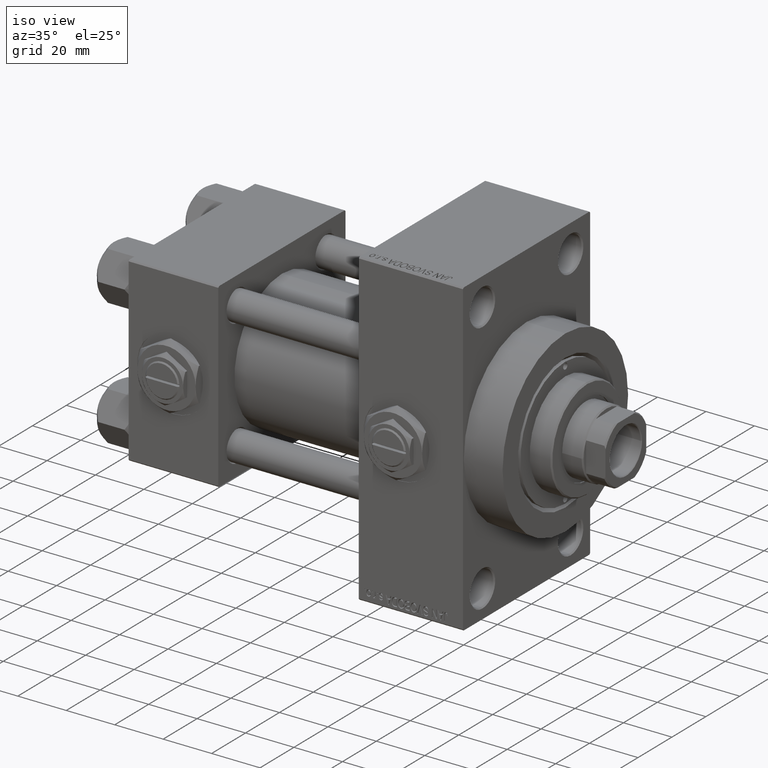
[diagram: clean part render]
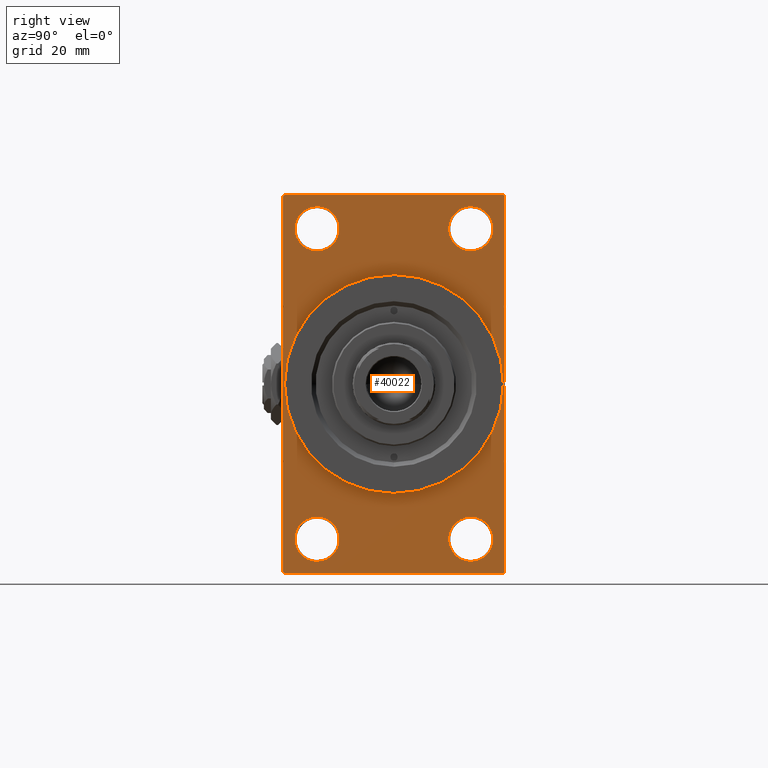
[diagram: tour spotlight — one face highlighted and labeled with its STEP entity id]
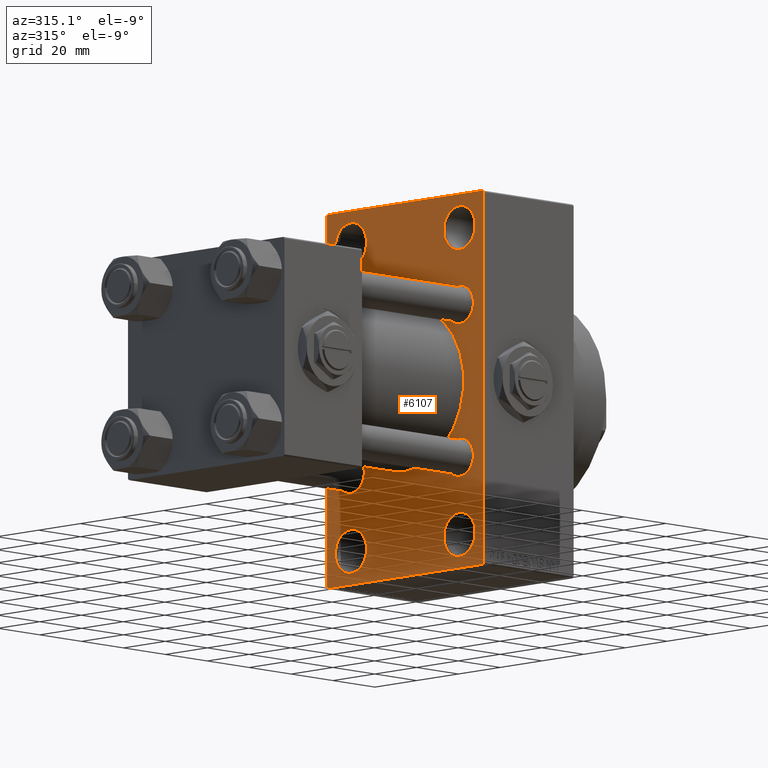
[diagram: tour spotlight — one face highlighted and labeled with its STEP entity id]
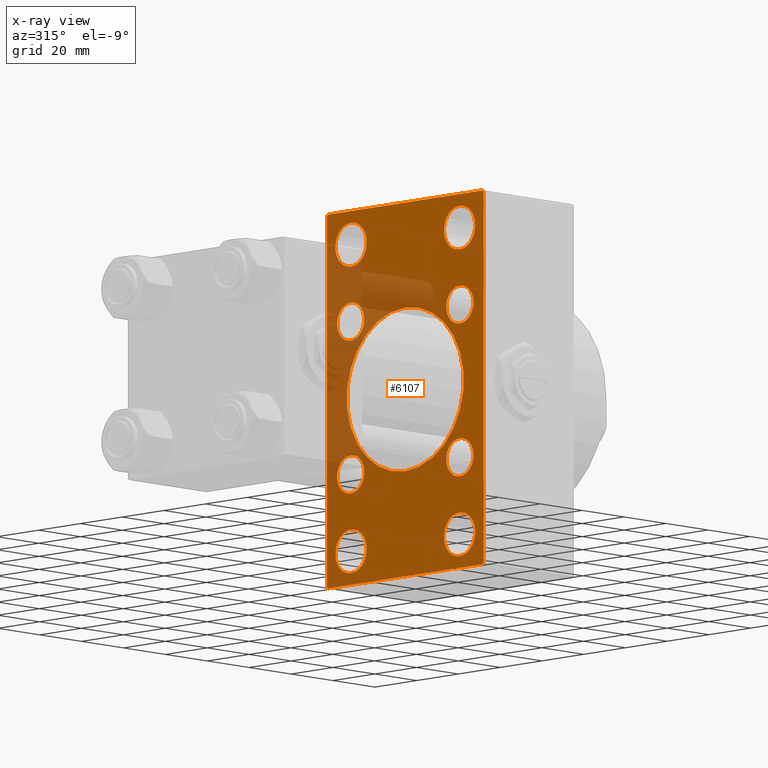
[diagram: x-ray of the same camera — body ghosted, this tour face saturated]
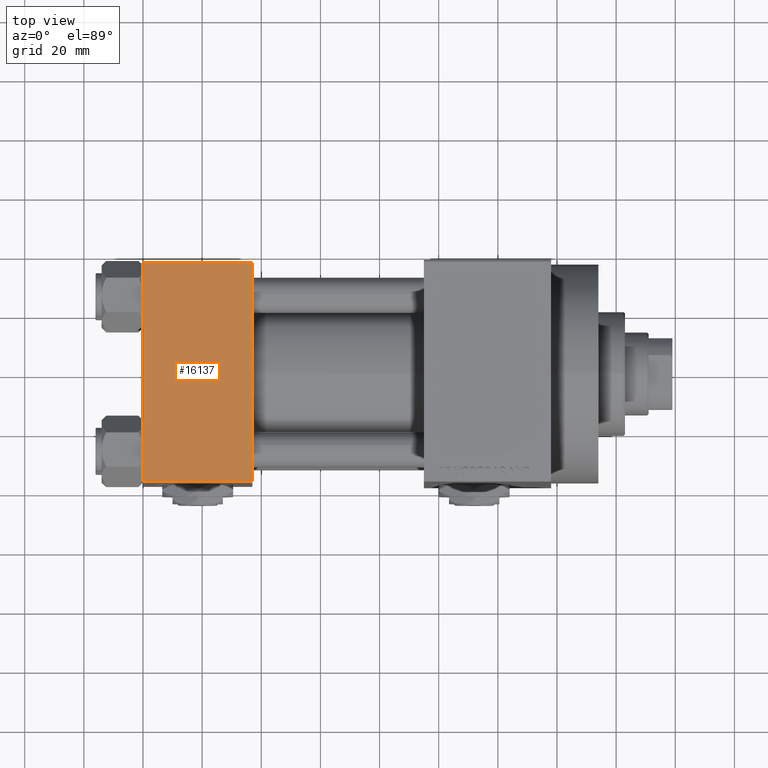
[diagram: tour spotlight — one face highlighted and labeled with its STEP entity id]
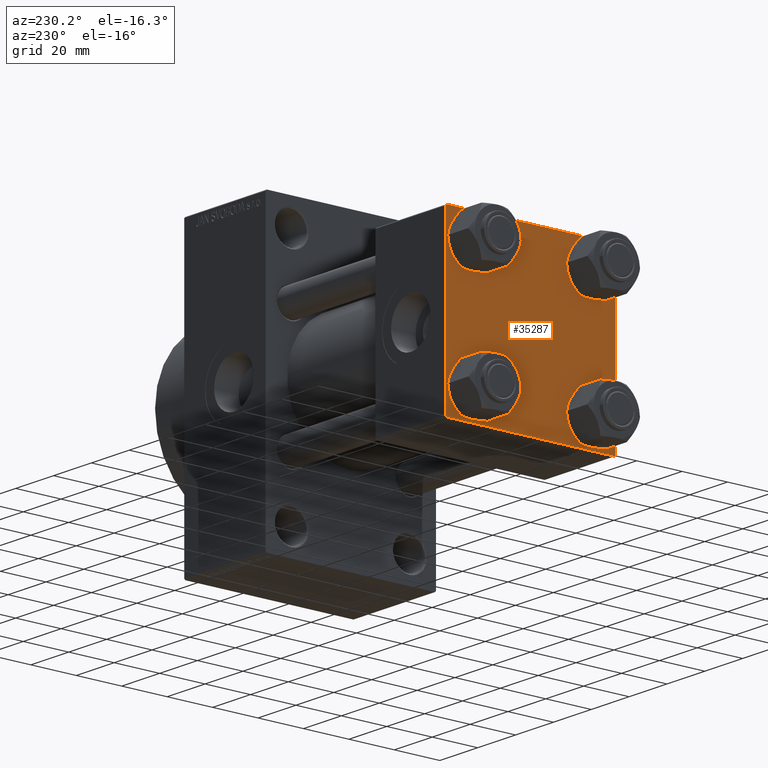
[diagram: tour spotlight — one face highlighted and labeled with its STEP entity id]
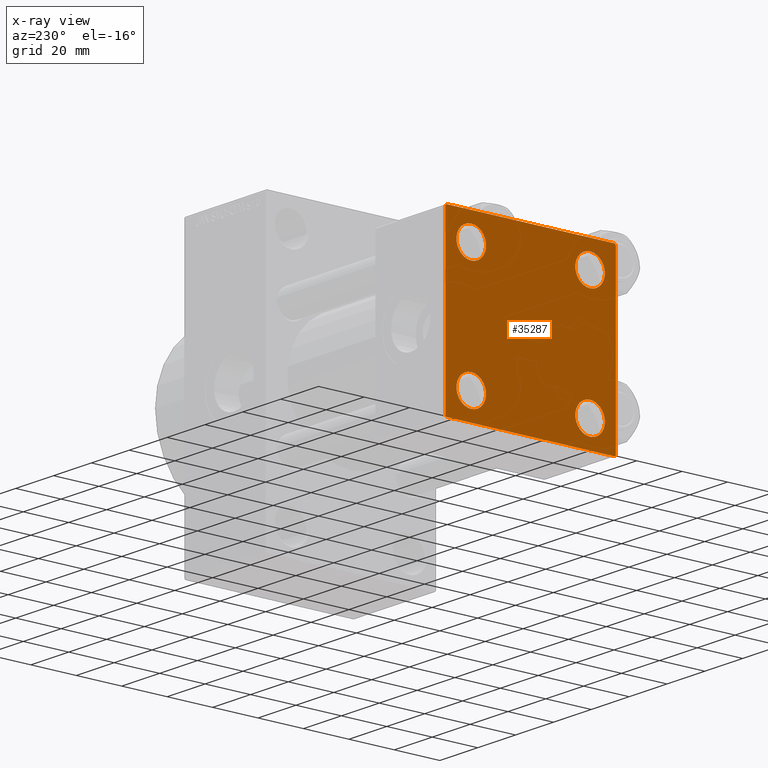
[diagram: x-ray of the same camera — body ghosted, this tour face saturated]
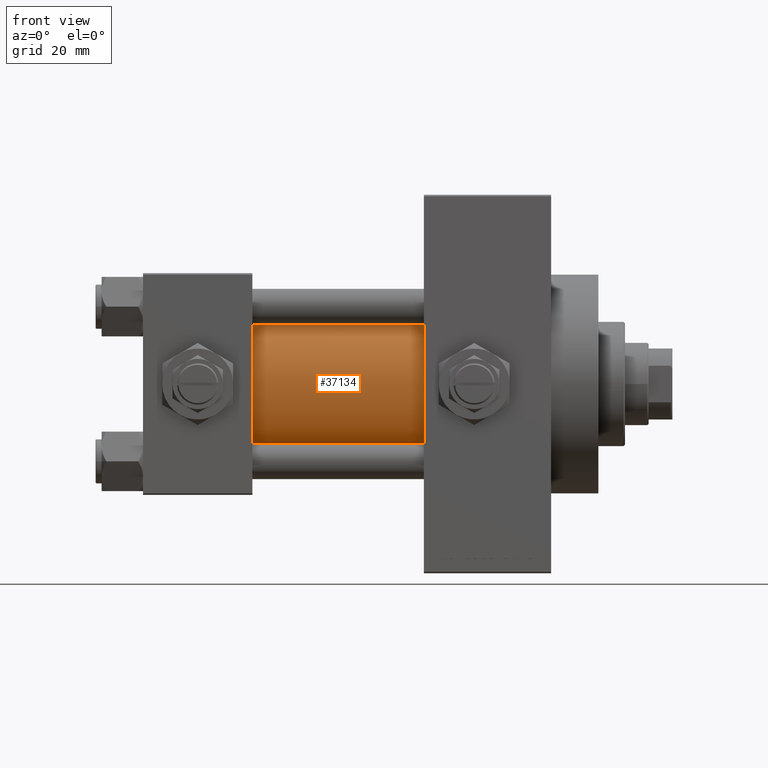
[diagram: tour spotlight — one face highlighted and labeled with its STEP entity id]
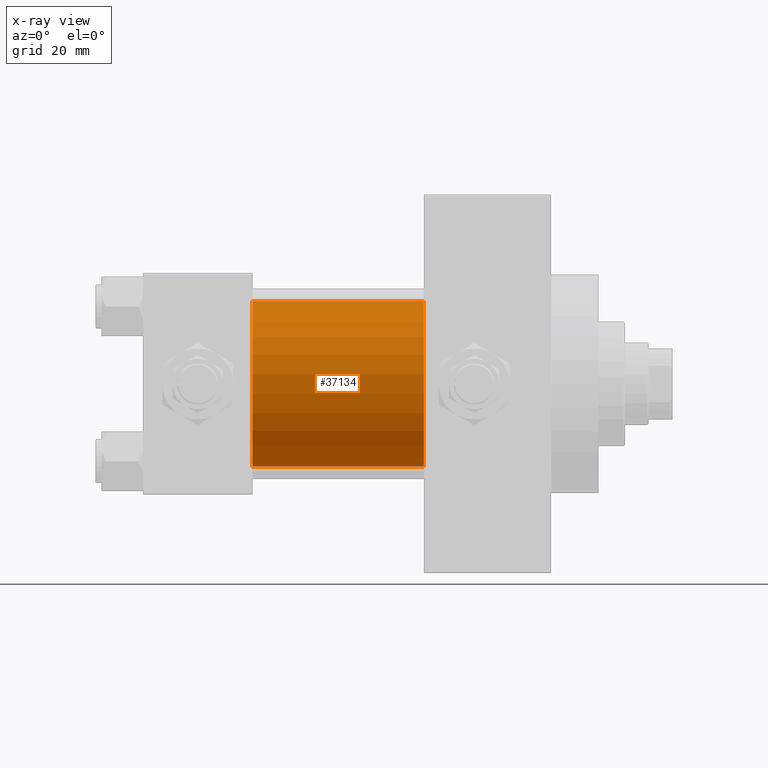
[diagram: x-ray of the same camera — body ghosted, this tour face saturated]
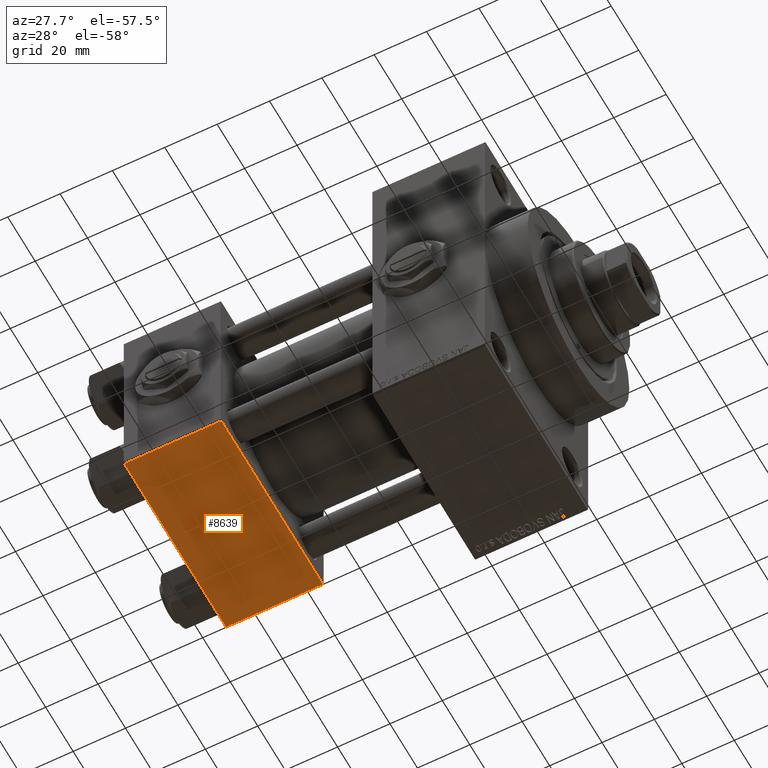
[diagram: tour spotlight — one face highlighted and labeled with its STEP entity id]
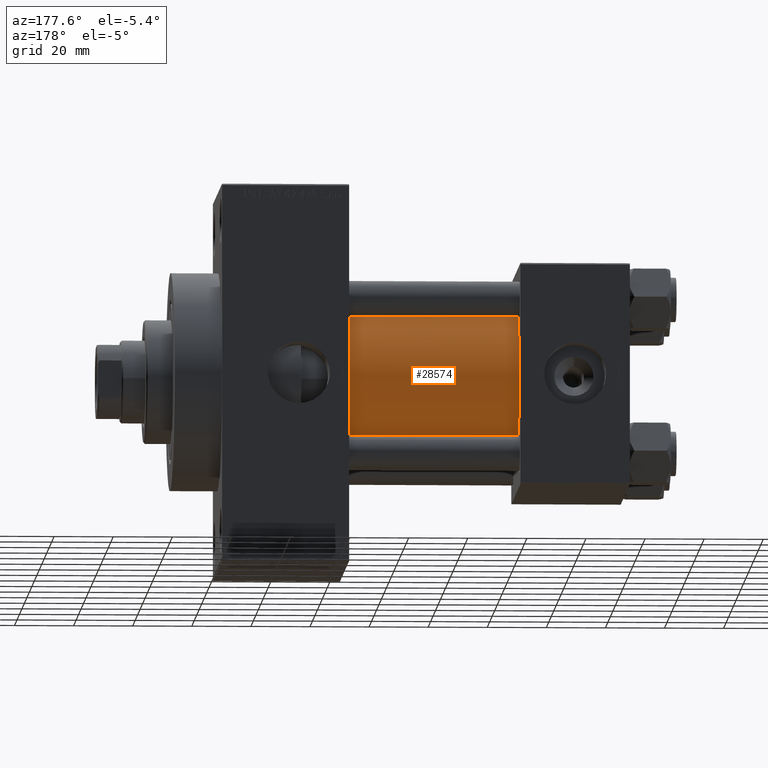
[diagram: tour spotlight — one face highlighted and labeled with its STEP entity id]
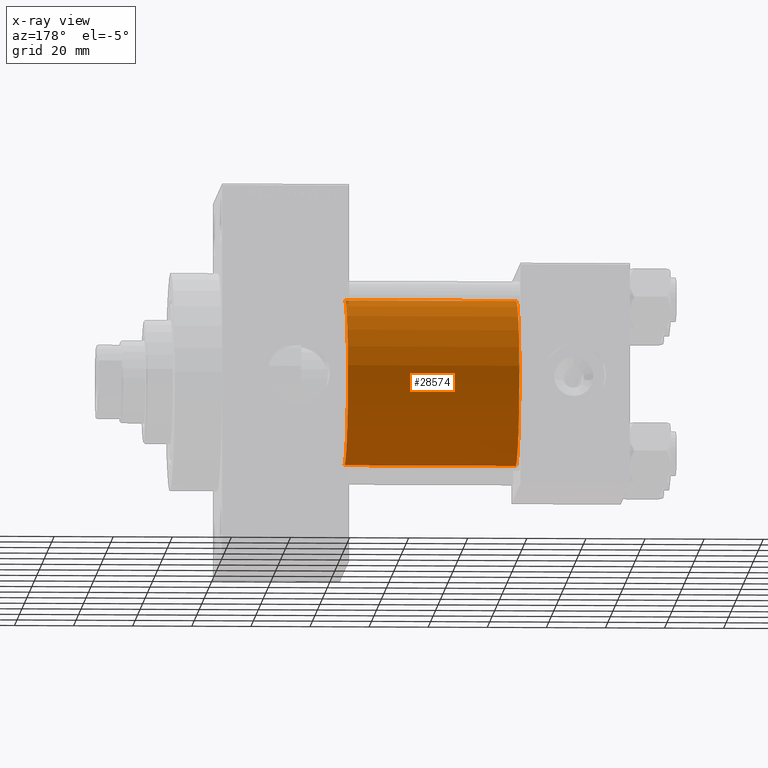
[diagram: x-ray of the same camera — body ghosted, this tour face saturated]
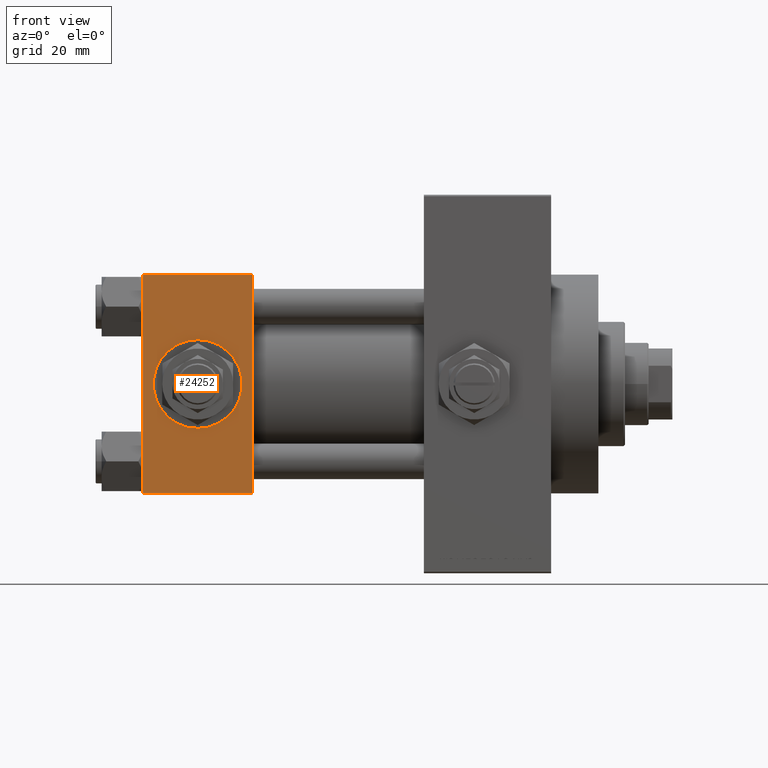
[diagram: tour spotlight — one face highlighted and labeled with its STEP entity id]
A machine part: a face-by-face anatomy tour. The part has 1213 B-rep faces; the first image is the clean iso view, then the 8 largest visible faces are spotlighted one at a time (largest first), each with its STEP entity span.

Face 1 — right view, entity #40022. In plain terms, the highlighted planar face has unit normal (-1, 0, 0).
Definition (entity closure, byte-faithful):
#43 = CARTESIAN_POINT ( 'NONE',  ( 138.0000000000000000, -25.99999999999999645, -44.99999999999998579 ) ) ;
#315 = CARTESIAN_POINT ( 'NONE',  ( 138.0000000000000000, -25.99999999999999645, 52.50000000000000000 ) ) ;
#1009 = VERTEX_POINT ( 'NONE', #45965 ) ;
#1106 = DIRECTION ( 'NONE',  ( -1.000000000000000000, 0.000000000000000000, -0.000000000000000000 ) ) ;
#1192 = VECTOR ( 'NONE', #2942, 1000.000000000000000 ) ;
#1444 = CARTESIAN_POINT ( 'NONE',  ( 138.0000000000000000, 26.00000000000000000, 52.49999999999999289 ) ) ;
#1534 = ORIENTED_EDGE ( 'NONE', *, *, #36671, .T. ) ;
#1595 = VERTEX_POINT ( 'NONE', #43 ) ;
#1845 = ORIENTED_EDGE ( 'NONE', *, *, #26157, .T. ) ;
#2733 = VERTEX_POINT ( 'NONE', #12959 ) ;
#2942 = DIRECTION ( 'NONE',  ( 0.000000000000000000, -1.000000000000000000, -1.850371707708594563E-16 ) ) ;
#3210 = CARTESIAN_POINT ( 'NONE',  ( 138.0000000000000000, -25.99999999999999645, -52.49999999999999289 ) ) ;
#3883 = DIRECTION ( 'NONE',  ( 0.000000000000000000, -1.000000000000000000, -1.850371707708594563E-16 ) ) ;
#4008 = EDGE_CURVE ( 'NONE', #30385, #10145, #22223, .T. ) ;
#4115 = VERTEX_POINT ( 'NONE', #44772 ) ;
#4124 = LINE ( 'NONE', #38176, #29007 ) ;
#4239 = VERTEX_POINT ( 'NONE', #11698 ) ;
#5293 = AXIS2_PLACEMENT_3D ( 'NONE', #30878, #8090, #35601 ) ;
#5321 = CARTESIAN_POINT ( 'NONE',  ( 138.0000000000000000, -25.99999999999999645, -60.00000000000000000 ) ) ;
#5378 = CARTESIAN_POINT ( 'NONE',  ( 138.0000000000000000, -37.49999999999999289, -63.49999999999997158 ) ) ;
#5564 = VERTEX_POINT ( 'NONE', #30377 ) ;
#5669 = AXIS2_PLACEMENT_3D ( 'NONE', #32057, #17282, #35309 ) ;
#5730 = DIRECTION ( 'NONE',  ( -0.000000000000000000, 0.7071067811865573427, 0.7071067811865378028 ) ) ;
#6385 = EDGE_CURVE ( 'NONE', #31803, #1009, #45149, .T. ) ;
#6476 = VERTEX_POINT ( 'NONE', #31815 ) ;
#6655 = ORIENTED_EDGE ( 'NONE', *, *, #4008, .T. ) ;
#7086 = DIRECTION ( 'NONE',  ( 0.000000000000000000, 0.000000000000000000, -1.000000000000000000 ) ) ;
#7576 = LINE ( 'NONE', #18330, #8133 ) ;
#7623 = CIRCLE ( 'NONE', #41220, 7.500000000000007105 ) ;
#7713 = CARTESIAN_POINT ( 'NONE',  ( 138.0000000000000000, -36.99999999999993605, -64.00000000000001421 ) ) ;
#7817 = DIRECTION ( 'NONE',  ( -1.000000000000000000, 0.000000000000000000, -0.000000000000000000 ) ) ;
#7988 = AXIS2_PLACEMENT_3D ( 'NONE', #3210, #37995, #26462 ) ;
#8090 = DIRECTION ( 'NONE',  ( 1.000000000000000000, 0.000000000000000000, 0.000000000000000000 ) ) ;
#8093 = CARTESIAN_POINT ( 'NONE',  ( 138.0000000000000000, 0.000000000000000000, 37.00000000000000000 ) ) ;
#8133 = VECTOR ( 'NONE', #7086, 1000.000000000000000 ) ;
#8379 = LINE ( 'NONE', #23624, #39728 ) ;
#8378 = FACE_BOUND ( 'NONE', #28687, .T. ) ;
#8402 = CIRCLE ( 'NONE', #5293, 37.00000000000000000 ) ;
#8544 = CARTESIAN_POINT ( 'NONE',  ( 138.0000000000000000, -25.99999999999999645, 52.50000000000000000 ) ) ;
#8605 = AXIS2_PLACEMENT_3D ( 'NONE', #10653, #25917, #40466 ) ;
#8779 = DIRECTION ( 'NONE',  ( 0.000000000000000000, 0.000000000000000000, 1.000000000000000000 ) ) ;
#9591 = DIRECTION ( 'NONE',  ( 0.000000000000000000, -5.421010862427522170E-17, -1.000000000000000000 ) ) ;
#9991 = DIRECTION ( 'NONE',  ( -1.000000000000000000, 0.000000000000000000, -0.000000000000000000 ) ) ;
#10142 = EDGE_LOOP ( 'NONE', ( #29118, #13651 ) ) ;
#10145 = VERTEX_POINT ( 'NONE', #18353 ) ;
#10260 = VECTOR ( 'NONE', #5730, 1000.000000000000000 ) ;
#10653 = CARTESIAN_POINT ( 'NONE',  ( 138.0000000000000000, 0.000000000000000000, 0.000000000000000000 ) ) ;
#10767 = VERTEX_POINT ( 'NONE', #32226 ) ;
#10947 = EDGE_CURVE ( 'NONE', #38012, #46930, #8402, .T. ) ;
#11678 = ORIENTED_EDGE ( 'NONE', *, *, #20705, .T. ) ;
#11698 = CARTESIAN_POINT ( 'NONE',  ( 138.0000000000000000, -37.49999999999999289, 63.49999999999994316 ) ) ;
#11839 = EDGE_CURVE ( 'NONE', #6476, #13543, #7623, .T. ) ;
#12261 = VECTOR ( 'NONE', #9591, 1000.000000000000000 ) ;
#12364 = DIRECTION ( 'NONE',  ( 0.000000000000000000, -0.7071067811865672237, 0.7071067811865279218 ) ) ;
#12775 = DIRECTION ( 'NONE',  ( -1.000000000000000000, 0.000000000000000000, -0.000000000000000000 ) ) ;
#12959 = CARTESIAN_POINT ( 'NONE',  ( 138.0000000000000000, -36.99999999999995737, 63.99999999999997158 ) ) ;
#13543 = VERTEX_POINT ( 'NONE', #45990 ) ;
#13651 = ORIENTED_EDGE ( 'NONE', *, *, #27617, .T. ) ;
#13841 = CARTESIAN_POINT ( 'NONE',  ( 138.0000000000000000, 4.531193156845206793E-15, -37.00000000000000000 ) ) ;
#14301 = ORIENTED_EDGE ( 'NONE', *, *, #11839, .T. ) ;
#14619 = EDGE_CURVE ( 'NONE', #2733, #4239, #26413, .T. ) ;
#15343 = CIRCLE ( 'NONE', #48936, 7.500000000000007105 ) ;
#15482 = AXIS2_PLACEMENT_3D ( 'NONE', #35152, #1106, #31400 ) ;
#16091 = ORIENTED_EDGE ( 'NONE', *, *, #34579, .T. ) ;
#16112 = EDGE_LOOP ( 'NONE', ( #16091, #39856 ) ) ;
#16163 = ORIENTED_EDGE ( 'NONE', *, *, #34644, .T. ) ;
#16577 = CARTESIAN_POINT ( 'NONE',  ( 138.0000000000000000, 36.99999999999999289, -64.00000000000000000 ) ) ;
#17282 = DIRECTION ( 'NONE',  ( -1.000000000000000000, 0.000000000000000000, -0.000000000000000000 ) ) ;
#17392 = EDGE_CURVE ( 'NONE', #46930, #38012, #25398, .T. ) ;
#17840 = CARTESIAN_POINT ( 'NONE',  ( 138.0000000000000000, 26.00000000000000000, -52.49999999999999289 ) ) ;
#18139 = AXIS2_PLACEMENT_3D ( 'NONE', #315, #7817, #42842 ) ;
#18330 = CARTESIAN_POINT ( 'NONE',  ( 138.0000000000000000, -37.49999999999999289, 63.99999999999997158 ) ) ;
#18353 = CARTESIAN_POINT ( 'NONE',  ( 138.0000000000000000, -36.99999999999993605, -64.00000000000001421 ) ) ;
#18473 = ORIENTED_EDGE ( 'NONE', *, *, #10947, .F. ) ;
#18514 = AXIS2_PLACEMENT_3D ( 'NONE', #17840, #32637, #20843 ) ;
#19302 = CIRCLE ( 'NONE', #18514, 7.500000000000007105 ) ;
#19813 = EDGE_CURVE ( 'NONE', #31613, #5564, #43778, .T. ) ;
#19873 = FACE_BOUND ( 'NONE', #16112, .T. ) ;
#19920 = EDGE_LOOP ( 'NONE', ( #33225, #11678 ) ) ;
#20425 = EDGE_CURVE ( 'NONE', #10767, #27757, #8379, .T. ) ;
#20448 = DIRECTION ( 'NONE',  ( 0.000000000000000000, 0.000000000000000000, 1.000000000000000000 ) ) ;
#20705 = EDGE_CURVE ( 'NONE', #1009, #31803, #26933, .T. ) ;
#20843 = DIRECTION ( 'NONE',  ( 0.000000000000000000, 0.000000000000000000, 1.000000000000000000 ) ) ;
#21087 = ORIENTED_EDGE ( 'NONE', *, *, #17392, .F. ) ;
#21101 = LINE ( 'NONE', #28623, #12261 ) ;
#21932 = CARTESIAN_POINT ( 'NONE',  ( 138.0000000000000000, 37.49999999999999289, -64.00000000000000000 ) ) ;
#22223 = LINE ( 'NONE', #7713, #37821 ) ;
#22569 = CARTESIAN_POINT ( 'NONE',  ( 138.0000000000000000, 26.00000000000000000, -52.49999999999999289 ) ) ;
#23624 = CARTESIAN_POINT ( 'NONE',  ( 138.0000000000000000, 36.99999999999997158, 63.99999999999998579 ) ) ;
#23866 = FACE_OUTER_BOUND ( 'NONE', #35341, .T. ) ;
#23940 = CIRCLE ( 'NONE', #7988, 7.500000000000007105 ) ;
#24012 = CARTESIAN_POINT ( 'NONE',  ( 138.0000000000000000, -25.99999999999999645, 44.99999999999999289 ) ) ;
#24113 = PLANE ( 'NONE',  #15482 ) ;
#24331 = ORIENTED_EDGE ( 'NONE', *, *, #19813, .T. ) ;
#25398 = CIRCLE ( 'NONE', #8605, 37.00000000000000000 ) ;
#25407 = CARTESIAN_POINT ( 'NONE',  ( 138.0000000000000000, 26.00000000000000000, -44.99999999999998579 ) ) ;
#25648 = DIRECTION ( 'NONE',  ( -1.000000000000000000, 0.000000000000000000, -0.000000000000000000 ) ) ;
#25756 = ORIENTED_EDGE ( 'NONE', *, *, #20425, .T. ) ;
#25917 = DIRECTION ( 'NONE',  ( 1.000000000000000000, 0.000000000000000000, 0.000000000000000000 ) ) ;
#25925 = DIRECTION ( 'NONE',  ( -0.000000000000000000, -0.7071067811865524577, -0.7071067811865426878 ) ) ;
#26157 = EDGE_CURVE ( 'NONE', #13543, #6476, #39113, .T. ) ;
#26353 = AXIS2_PLACEMENT_3D ( 'NONE', #36531, #9991, #29270 ) ;
#26413 = LINE ( 'NONE', #44959, #26873 ) ;
#26462 = DIRECTION ( 'NONE',  ( 0.000000000000000000, 0.000000000000000000, 1.000000000000000000 ) ) ;
#26873 = VECTOR ( 'NONE', #25925, 1000.000000000000000 ) ;
#26933 = CIRCLE ( 'NONE', #18139, 7.500000000000007105 ) ;
#27617 = EDGE_CURVE ( 'NONE', #1595, #41135, #23940, .T. ) ;
#27757 = VERTEX_POINT ( 'NONE', #30974 ) ;
#28213 = DIRECTION ( 'NONE',  ( -1.000000000000000000, 0.000000000000000000, -0.000000000000000000 ) ) ;
#28623 = CARTESIAN_POINT ( 'NONE',  ( 138.0000000000000000, 37.50000000000000000, 63.99999999999998579 ) ) ;
#28687 = EDGE_LOOP ( 'NONE', ( #14301, #1845 ) ) ;
#29007 = VECTOR ( 'NONE', #3883, 1000.000000000000000 ) ;
#29118 = ORIENTED_EDGE ( 'NONE', *, *, #33340, .T. ) ;
#29270 = DIRECTION ( 'NONE',  ( 0.000000000000000000, 0.000000000000000000, 1.000000000000000000 ) ) ;
#30377 = CARTESIAN_POINT ( 'NONE',  ( 138.0000000000000000, 37.49999999999999289, -63.50000000000001421 ) ) ;
#30385 = VERTEX_POINT ( 'NONE', #5378 ) ;
#30878 = CARTESIAN_POINT ( 'NONE',  ( 138.0000000000000000, 0.000000000000000000, 0.000000000000000000 ) ) ;
#30915 = FACE_BOUND ( 'NONE', #19920, .T. ) ;
#30974 = CARTESIAN_POINT ( 'NONE',  ( 138.0000000000000000, 36.99999999999997158, 63.99999999999998579 ) ) ;
#31151 = ORIENTED_EDGE ( 'NONE', *, *, #39147, .F. ) ;
#31400 = DIRECTION ( 'NONE',  ( -0.000000000000000000, 0.000000000000000000, 1.000000000000000000 ) ) ;
#31613 = VERTEX_POINT ( 'NONE', #16577 ) ;
#31645 = FACE_BOUND ( 'NONE', #10142, .T. ) ;
#31803 = VERTEX_POINT ( 'NONE', #24012 ) ;
#31815 = CARTESIAN_POINT ( 'NONE',  ( 138.0000000000000000, 26.00000000000000000, 44.99999999999998579 ) ) ;
#32057 = CARTESIAN_POINT ( 'NONE',  ( 138.0000000000000000, -25.99999999999999645, -52.49999999999999289 ) ) ;
#32226 = CARTESIAN_POINT ( 'NONE',  ( 138.0000000000000000, 37.50000000000000000, 63.49999999999998579 ) ) ;
#32637 = DIRECTION ( 'NONE',  ( -1.000000000000000000, 0.000000000000000000, -0.000000000000000000 ) ) ;
#32766 = CARTESIAN_POINT ( 'NONE',  ( 138.0000000000000000, 37.49999999999999289, -63.50000000000001421 ) ) ;
#33225 = ORIENTED_EDGE ( 'NONE', *, *, #6385, .T. ) ;
#33268 = DIRECTION ( 'NONE',  ( 0.000000000000000000, 0.7071067811865574537, -0.7071067811865376918 ) ) ;
#33340 = EDGE_CURVE ( 'NONE', #41135, #1595, #48824, .T. ) ;
#34579 = EDGE_CURVE ( 'NONE', #4115, #38783, #19302, .T. ) ;
#34644 = EDGE_CURVE ( 'NONE', #4239, #30385, #7576, .T. ) ;
#35152 = CARTESIAN_POINT ( 'NONE',  ( 138.0000000000000000, 0.000000000000000000, 0.000000000000000000 ) ) ;
#35309 = DIRECTION ( 'NONE',  ( 0.000000000000000000, 0.000000000000000000, 1.000000000000000000 ) ) ;
#35341 = EDGE_LOOP ( 'NONE', ( #16163, #6655, #36368, #24331, #31151, #25756, #1534, #48614 ) ) ;
#35422 = EDGE_CURVE ( 'NONE', #38783, #4115, #15343, .T. ) ;
#35601 = DIRECTION ( 'NONE',  ( 0.000000000000000000, 0.000000000000000000, -1.000000000000000000 ) ) ;
#35639 = FACE_BOUND ( 'NONE', #42696, .T. ) ;
#36368 = ORIENTED_EDGE ( 'NONE', *, *, #41626, .F. ) ;
#36531 = CARTESIAN_POINT ( 'NONE',  ( 138.0000000000000000, 26.00000000000000000, 52.49999999999999289 ) ) ;
#36671 = EDGE_CURVE ( 'NONE', #27757, #2733, #4124, .T. ) ;
#37821 = VECTOR ( 'NONE', #33268, 999.9999999999998863 ) ;
#37995 = DIRECTION ( 'NONE',  ( -1.000000000000000000, 0.000000000000000000, -0.000000000000000000 ) ) ;
#38012 = VERTEX_POINT ( 'NONE', #13841 ) ;
#38176 = CARTESIAN_POINT ( 'NONE',  ( 138.0000000000000000, 37.50000000000000000, 63.99999999999998579 ) ) ;
#38783 = VERTEX_POINT ( 'NONE', #25407 ) ;
#39113 = CIRCLE ( 'NONE', #26353, 7.500000000000007105 ) ;
#39147 = EDGE_CURVE ( 'NONE', #10767, #5564, #21101, .T. ) ;
#39728 = VECTOR ( 'NONE', #12364, 1000.000000000000000 ) ;
#39856 = ORIENTED_EDGE ( 'NONE', *, *, #35422, .T. ) ;
#40022 = ADVANCED_FACE ( 'NONE', ( #30915, #31645, #19873, #8378, #35639, #23866 ), #24113, .F. ) ;
#40466 = DIRECTION ( 'NONE',  ( 0.000000000000000000, 0.000000000000000000, -1.000000000000000000 ) ) ;
#40984 = LINE ( 'NONE', #21932, #1192 ) ;
#41135 = VERTEX_POINT ( 'NONE', #5321 ) ;
#41220 = AXIS2_PLACEMENT_3D ( 'NONE', #1444, #28213, #20448 ) ;
#41626 = EDGE_CURVE ( 'NONE', #31613, #10145, #40984, .T. ) ;
#42696 = EDGE_LOOP ( 'NONE', ( #21087, #18473 ) ) ;
#42842 = DIRECTION ( 'NONE',  ( 0.000000000000000000, 0.000000000000000000, 1.000000000000000000 ) ) ;
#43778 = LINE ( 'NONE', #32766, #10260 ) ;
#44772 = CARTESIAN_POINT ( 'NONE',  ( 138.0000000000000000, 26.00000000000000000, -60.00000000000000000 ) ) ;
#44959 = CARTESIAN_POINT ( 'NONE',  ( 138.0000000000000000, -37.49999999999999289, 63.49999999999994316 ) ) ;
#45149 = CIRCLE ( 'NONE', #49138, 7.500000000000007105 ) ;
#45965 = CARTESIAN_POINT ( 'NONE',  ( 138.0000000000000000, -25.99999999999999645, 60.00000000000000711 ) ) ;
#45990 = CARTESIAN_POINT ( 'NONE',  ( 138.0000000000000000, 26.00000000000000000, 60.00000000000000000 ) ) ;
#46930 = VERTEX_POINT ( 'NONE', #8093 ) ;
#48445 = DIRECTION ( 'NONE',  ( 0.000000000000000000, 0.000000000000000000, 1.000000000000000000 ) ) ;
#48614 = ORIENTED_EDGE ( 'NONE', *, *, #14619, .T. ) ;
#48824 = CIRCLE ( 'NONE', #5669, 7.500000000000007105 ) ;
#48936 = AXIS2_PLACEMENT_3D ( 'NONE', #22569, #25648, #48445 ) ;
#49138 = AXIS2_PLACEMENT_3D ( 'NONE', #8544, #12775, #8779 ) ;

Face 2 — auxiliary view, entity #6107. An x-ray twin of the same camera follows (body ghosted, this face saturated) — the face is partly hidden behind the body. In plain terms, the highlighted planar face has unit normal (-1, 0, 0).
Definition (entity closure, byte-faithful):
#342 = EDGE_CURVE ( 'NONE', #41109, #5036, #47305, .T. ) ;
#533 = ORIENTED_EDGE ( 'NONE', *, *, #342, .T. ) ;
#812 = AXIS2_PLACEMENT_3D ( 'NONE', #12180, #42968, #26961 ) ;
#862 = VERTEX_POINT ( 'NONE', #24154 ) ;
#984 = VERTEX_POINT ( 'NONE', #17511 ) ;
#1003 = CARTESIAN_POINT ( 'NONE',  ( 95.00000000000000000, -26.14999999999999147, -26.15000000000000924 ) ) ;
#1342 = CARTESIAN_POINT ( 'NONE',  ( 95.00000000000000000, 26.14999999999999858, -32.65000000000001279 ) ) ;
#1712 = CIRCLE ( 'NONE', #37701, 7.499999999999978684 ) ;
#1775 = DIRECTION ( 'NONE',  ( 0.000000000000000000, -0.7071067811865574537, 0.7071067811865376918 ) ) ;
#2087 = EDGE_CURVE ( 'NONE', #33861, #44736, #18190, .T. ) ;
#2635 = VERTEX_POINT ( 'NONE', #36558 ) ;
#3333 = EDGE_CURVE ( 'NONE', #47936, #2635, #14666, .T. ) ;
#3444 = DIRECTION ( 'NONE',  ( 0.000000000000000000, -1.000000000000000000, -1.850371707708594563E-16 ) ) ;
#3824 = ORIENTED_EDGE ( 'NONE', *, *, #45757, .T. ) ;
#4162 = CARTESIAN_POINT ( 'NONE',  ( 95.00000000000000000, 26.00000000000000000, -52.49999999999999289 ) ) ;
#4420 = CARTESIAN_POINT ( 'NONE',  ( 95.00000000000000000, 26.00000000000000000, 45.00000000000001421 ) ) ;
#4962 = VERTEX_POINT ( 'NONE', #14544 ) ;
#5036 = VERTEX_POINT ( 'NONE', #37576 ) ;
#5090 = FACE_BOUND ( 'NONE', #8473, .T. ) ;
#5100 = ORIENTED_EDGE ( 'NONE', *, *, #27729, .T. ) ;
#5222 = DIRECTION ( 'NONE',  ( 0.000000000000000000, 0.000000000000000000, 1.000000000000000000 ) ) ;
#5224 = ORIENTED_EDGE ( 'NONE', *, *, #15418, .T. ) ;
#5470 = CARTESIAN_POINT ( 'NONE',  ( 95.00000000000000000, 36.99999999999997158, 63.99999999999998579 ) ) ;
#5727 = VERTEX_POINT ( 'NONE', #40366 ) ;
#5947 = EDGE_LOOP ( 'NONE', ( #3824, #11682 ) ) ;
#6107 = ADVANCED_FACE ( 'NONE', ( #43378, #23357, #27862, #35132, #46642, #43127, #12343, #12832, #5090, #9086 ), #39623, .T. ) ;
#6264 = VERTEX_POINT ( 'NONE', #10568 ) ;
#6341 = ORIENTED_EDGE ( 'NONE', *, *, #7129, .F. ) ;
#6532 = ORIENTED_EDGE ( 'NONE', *, *, #19482, .T. ) ;
#6542 = ORIENTED_EDGE ( 'NONE', *, *, #48803, .T. ) ;
#6581 = DIRECTION ( 'NONE',  ( -0.000000000000000000, 0.000000000000000000, 1.000000000000000000 ) ) ;
#6865 = CARTESIAN_POINT ( 'NONE',  ( 95.00000000000000000, -37.49999999999999289, 63.49999999999994316 ) ) ;
#7129 = EDGE_CURVE ( 'NONE', #33861, #5727, #49237, .T. ) ;
#7381 = VERTEX_POINT ( 'NONE', #30709 ) ;
#7625 = EDGE_CURVE ( 'NONE', #44736, #40798, #32069, .T. ) ;
#7918 = DIRECTION ( 'NONE',  ( 0.000000000000000000, 0.000000000000000000, 1.000000000000000000 ) ) ;
#8050 = DIRECTION ( 'NONE',  ( 0.000000000000000000, 0.000000000000000000, 1.000000000000000000 ) ) ;
#8161 = CIRCLE ( 'NONE', #36143, 28.00000000000000000 ) ;
#8473 = EDGE_LOOP ( 'NONE', ( #49514, #44495 ) ) ;
#8835 = CARTESIAN_POINT ( 'NONE',  ( 95.00000000000000000, 37.49999999999999289, -63.50000000000001421 ) ) ;
#8845 = DIRECTION ( 'NONE',  ( 0.000000000000000000, 0.000000000000000000, 1.000000000000000000 ) ) ;
#9086 = FACE_OUTER_BOUND ( 'NONE', #46698, .T. ) ;
#9465 = CIRCLE ( 'NONE', #42545, 6.500000000000008882 ) ;
#9709 = AXIS2_PLACEMENT_3D ( 'NONE', #4162, #12643, #11908 ) ;
#9735 = AXIS2_PLACEMENT_3D ( 'NONE', #32896, #28640, #10351 ) ;
#9774 = CIRCLE ( 'NONE', #37757, 28.00000000000000000 ) ;
#10351 = DIRECTION ( 'NONE',  ( 0.000000000000000000, 0.000000000000000000, 1.000000000000000000 ) ) ;
#10487 = CIRCLE ( 'NONE', #33698, 7.499999999999978684 ) ;
#10568 = CARTESIAN_POINT ( 'NONE',  ( 95.00000000000000000, 26.14999999999999858, -19.64999999999999503 ) ) ;
#10721 = AXIS2_PLACEMENT_3D ( 'NONE', #27618, #20090, #6581 ) ;
#10960 = DIRECTION ( 'NONE',  ( 0.000000000000000000, 0.000000000000000000, 1.000000000000000000 ) ) ;
#11299 = ORIENTED_EDGE ( 'NONE', *, *, #48588, .T. ) ;
#11682 = ORIENTED_EDGE ( 'NONE', *, *, #35922, .T. ) ;
#11808 = ORIENTED_EDGE ( 'NONE', *, *, #38821, .F. ) ;
#11908 = DIRECTION ( 'NONE',  ( 0.000000000000000000, 0.000000000000000000, 1.000000000000000000 ) ) ;
#12180 = CARTESIAN_POINT ( 'NONE',  ( 95.00000000000000000, 26.14999999999999858, 26.15000000000000213 ) ) ;
#12343 = FACE_BOUND ( 'NONE', #28906, .T. ) ;
#12491 = DIRECTION ( 'NONE',  ( 1.000000000000000000, -0.000000000000000000, 0.000000000000000000 ) ) ;
#12643 = DIRECTION ( 'NONE',  ( 1.000000000000000000, -0.000000000000000000, 0.000000000000000000 ) ) ;
#12832 = FACE_BOUND ( 'NONE', #5947, .T. ) ;
#12920 = VERTEX_POINT ( 'NONE', #35566 ) ;
#13036 = CARTESIAN_POINT ( 'NONE',  ( 95.00000000000000000, 37.50000000000000000, 63.99999999999998579 ) ) ;
#13432 = DIRECTION ( 'NONE',  ( 1.000000000000000000, -0.000000000000000000, 0.000000000000000000 ) ) ;
#13461 = AXIS2_PLACEMENT_3D ( 'NONE', #24935, #13432, #17434 ) ;
#13972 = DIRECTION ( 'NONE',  ( 0.000000000000000000, 0.000000000000000000, -1.000000000000000000 ) ) ;
#14219 = DIRECTION ( 'NONE',  ( -0.000000000000000000, 0.7071067811865524577, 0.7071067811865426878 ) ) ;
#14362 = CIRCLE ( 'NONE', #42336, 6.500000000000008882 ) ;
#14454 = CARTESIAN_POINT ( 'NONE',  ( 95.00000000000000000, 37.50000000000000000, 63.99999999999998579 ) ) ;
#14544 = CARTESIAN_POINT ( 'NONE',  ( 95.00000000000000000, 26.00000000000000000, -45.00000000000001421 ) ) ;
#14666 = CIRCLE ( 'NONE', #42641, 7.499999999999978684 ) ;
#14714 = DIRECTION ( 'NONE',  ( 1.000000000000000000, -0.000000000000000000, 0.000000000000000000 ) ) ;
#14921 = EDGE_CURVE ( 'NONE', #47478, #22808, #34133, .T. ) ;
#15308 = DIRECTION ( 'NONE',  ( 1.000000000000000000, -0.000000000000000000, 0.000000000000000000 ) ) ;
#15418 = EDGE_CURVE ( 'NONE', #40798, #26951, #29609, .T. ) ;
#15759 = CIRCLE ( 'NONE', #48526, 6.500000000000008882 ) ;
#16034 = EDGE_CURVE ( 'NONE', #6264, #24017, #15759, .T. ) ;
#16478 = CARTESIAN_POINT ( 'NONE',  ( 95.00000000000000000, 26.14999999999999858, -26.15000000000000213 ) ) ;
#16519 = VERTEX_POINT ( 'NONE', #40699 ) ;
#17165 = LINE ( 'NONE', #28680, #21050 ) ;
#17199 = AXIS2_PLACEMENT_3D ( 'NONE', #1003, #38075, #19032 ) ;
#17240 = LINE ( 'NONE', #21478, #40118 ) ;
#17434 = DIRECTION ( 'NONE',  ( 0.000000000000000000, 0.000000000000000000, 1.000000000000000000 ) ) ;
#17511 = CARTESIAN_POINT ( 'NONE',  ( 95.00000000000000000, -37.49999999999999289, -63.49999999999997158 ) ) ;
#18026 = ORIENTED_EDGE ( 'NONE', *, *, #18495, .T. ) ;
#18190 = LINE ( 'NONE', #32745, #39378 ) ;
#18495 = EDGE_CURVE ( 'NONE', #30184, #34167, #35013, .T. ) ;
#18755 = CARTESIAN_POINT ( 'NONE',  ( 95.00000000000000000, -26.14999999999999147, -26.15000000000000924 ) ) ;
#19032 = DIRECTION ( 'NONE',  ( 0.000000000000000000, 0.000000000000000000, 1.000000000000000000 ) ) ;
#19053 = DIRECTION ( 'NONE',  ( 0.000000000000000000, 0.000000000000000000, 1.000000000000000000 ) ) ;
#19162 = DIRECTION ( 'NONE',  ( 0.000000000000000000, -1.000000000000000000, -1.850371707708594563E-16 ) ) ;
#19482 = EDGE_CURVE ( 'NONE', #7381, #25471, #9465, .T. ) ;
#19669 = CARTESIAN_POINT ( 'NONE',  ( 95.00000000000000000, -25.99999999999999645, -52.49999999999999289 ) ) ;
#19805 = EDGE_CURVE ( 'NONE', #22969, #5727, #17240, .T. ) ;
#20090 = DIRECTION ( 'NONE',  ( -1.000000000000000000, 0.000000000000000000, -0.000000000000000000 ) ) ;
#21050 = VECTOR ( 'NONE', #35931, 1000.000000000000000 ) ;
#21478 = CARTESIAN_POINT ( 'NONE',  ( 95.00000000000000000, -50.49999999999970868, 50.50000000000040501 ) ) ;
#22205 = CARTESIAN_POINT ( 'NONE',  ( 95.00000000000000000, -2.602085213965210642E-15, 0.000000000000000000 ) ) ;
#22781 = DIRECTION ( 'NONE',  ( 0.000000000000000000, 0.000000000000000000, 1.000000000000000000 ) ) ;
#22786 = EDGE_LOOP ( 'NONE', ( #6532, #48309 ) ) ;
#22808 = VERTEX_POINT ( 'NONE', #46973 ) ;
#22918 = CARTESIAN_POINT ( 'NONE',  ( 95.00000000000000000, 37.49999999999999289, -64.00000000000000000 ) ) ;
#22960 = EDGE_CURVE ( 'NONE', #2635, #47936, #25427, .T. ) ;
#22969 = VERTEX_POINT ( 'NONE', #6865 ) ;
#23289 = CARTESIAN_POINT ( 'NONE',  ( 95.00000000000000000, -25.99999999999999645, 45.00000000000002132 ) ) ;
#23335 = AXIS2_PLACEMENT_3D ( 'NONE', #18755, #38782, #47261 ) ;
#23357 = FACE_BOUND ( 'NONE', #32429, .T. ) ;
#23404 = ORIENTED_EDGE ( 'NONE', *, *, #41580, .T. ) ;
#23710 = VECTOR ( 'NONE', #49113, 1000.000000000000000 ) ;
#24017 = VERTEX_POINT ( 'NONE', #1342 ) ;
#24154 = CARTESIAN_POINT ( 'NONE',  ( 95.00000000000000000, -26.14999999999999147, -19.65000000000000213 ) ) ;
#24935 = CARTESIAN_POINT ( 'NONE',  ( 95.00000000000000000, -25.99999999999999645, 52.50000000000000000 ) ) ;
#24981 = DIRECTION ( 'NONE',  ( 1.000000000000000000, 0.000000000000000000, 0.000000000000000000 ) ) ;
#25044 = DIRECTION ( 'NONE',  ( 0.000000000000000000, 0.000000000000000000, 1.000000000000000000 ) ) ;
#25128 = CIRCLE ( 'NONE', #28301, 7.499999999999978684 ) ;
#25203 = ORIENTED_EDGE ( 'NONE', *, *, #7625, .T. ) ;
#25427 = CIRCLE ( 'NONE', #13461, 7.499999999999978684 ) ;
#25471 = VERTEX_POINT ( 'NONE', #28647 ) ;
#26088 = ORIENTED_EDGE ( 'NONE', *, *, #22960, .T. ) ;
#26707 = CARTESIAN_POINT ( 'NONE',  ( 95.00000000000000000, 36.99999999999999289, -64.00000000000000000 ) ) ;
#26825 = EDGE_CURVE ( 'NONE', #25471, #7381, #14362, .T. ) ;
#26951 = VERTEX_POINT ( 'NONE', #26707 ) ;
#26961 = DIRECTION ( 'NONE',  ( 0.000000000000000000, 0.000000000000000000, 1.000000000000000000 ) ) ;
#27133 = DIRECTION ( 'NONE',  ( 1.000000000000000000, -0.000000000000000000, 0.000000000000000000 ) ) ;
#27226 = ORIENTED_EDGE ( 'NONE', *, *, #14921, .T. ) ;
#27373 = VERTEX_POINT ( 'NONE', #39889 ) ;
#27618 = CARTESIAN_POINT ( 'NONE',  ( 95.00000000000000000, 0.000000000000000000, 0.000000000000000000 ) ) ;
#27729 = EDGE_CURVE ( 'NONE', #22808, #47478, #35960, .T. ) ;
#27862 = FACE_BOUND ( 'NONE', #35240, .T. ) ;
#28292 = CARTESIAN_POINT ( 'NONE',  ( 95.00000000000000000, -50.49999999999945999, -50.50000000000086686 ) ) ;
#28301 = AXIS2_PLACEMENT_3D ( 'NONE', #36523, #14714, #10960 ) ;
#28640 = DIRECTION ( 'NONE',  ( 1.000000000000000000, -0.000000000000000000, 0.000000000000000000 ) ) ;
#28647 = CARTESIAN_POINT ( 'NONE',  ( 95.00000000000000000, -26.14999999999999147, 19.65000000000000213 ) ) ;
#28660 = EDGE_CURVE ( 'NONE', #24017, #6264, #31996, .T. ) ;
#28680 = CARTESIAN_POINT ( 'NONE',  ( 95.00000000000000000, -37.49999999999999289, 63.99999999999997158 ) ) ;
#28906 = EDGE_LOOP ( 'NONE', ( #41778, #39024 ) ) ;
#29572 = CARTESIAN_POINT ( 'NONE',  ( 95.00000000000000000, 37.50000000000000000, 63.49999999999998579 ) ) ;
#29609 = LINE ( 'NONE', #41609, #23710 ) ;
#29779 = DIRECTION ( 'NONE',  ( 1.000000000000000000, -0.000000000000000000, 0.000000000000000000 ) ) ;
#30184 = VERTEX_POINT ( 'NONE', #38437 ) ;
#30220 = DIRECTION ( 'NONE',  ( 0.000000000000000000, 0.000000000000000000, -1.000000000000000000 ) ) ;
#30472 = CIRCLE ( 'NONE', #9709, 7.499999999999978684 ) ;
#30709 = CARTESIAN_POINT ( 'NONE',  ( 95.00000000000000000, -26.14999999999999147, 32.65000000000001990 ) ) ;
#30954 = ORIENTED_EDGE ( 'NONE', *, *, #2087, .T. ) ;
#31120 = CARTESIAN_POINT ( 'NONE',  ( 95.00000000000000000, -25.99999999999999645, -45.00000000000001421 ) ) ;
#31144 = CARTESIAN_POINT ( 'NONE',  ( 95.00000000000000000, -25.99999999999999645, 52.50000000000000000 ) ) ;
#31562 = LINE ( 'NONE', #28292, #43240 ) ;
#31996 = CIRCLE ( 'NONE', #47179, 6.500000000000008882 ) ;
#32069 = LINE ( 'NONE', #13036, #39558 ) ;
#32277 = DIRECTION ( 'NONE',  ( 0.000000000000000000, 0.000000000000000000, 1.000000000000000000 ) ) ;
#32354 = VECTOR ( 'NONE', #3444, 1000.000000000000000 ) ;
#32429 = EDGE_LOOP ( 'NONE', ( #533, #48376 ) ) ;
#32745 = CARTESIAN_POINT ( 'NONE',  ( 95.00000000000000000, 50.49999999999894840, 50.50000000000176215 ) ) ;
#32896 = CARTESIAN_POINT ( 'NONE',  ( 95.00000000000000000, -25.99999999999999645, -52.49999999999999289 ) ) ;
#33343 = EDGE_CURVE ( 'NONE', #27373, #984, #31562, .T. ) ;
#33698 = AXIS2_PLACEMENT_3D ( 'NONE', #19669, #34947, #7918 ) ;
#33861 = VERTEX_POINT ( 'NONE', #5470 ) ;
#33924 = VERTEX_POINT ( 'NONE', #36747 ) ;
#34133 = CIRCLE ( 'NONE', #38102, 6.500000000000008882 ) ;
#34167 = VERTEX_POINT ( 'NONE', #4420 ) ;
#34811 = CARTESIAN_POINT ( 'NONE',  ( 95.00000000000000000, -26.14999999999999147, 26.15000000000000924 ) ) ;
#34947 = DIRECTION ( 'NONE',  ( 1.000000000000000000, -0.000000000000000000, 0.000000000000000000 ) ) ;
#35013 = CIRCLE ( 'NONE', #47810, 7.499999999999978684 ) ;
#35132 = FACE_BOUND ( 'NONE', #41912, .T. ) ;
#35240 = EDGE_LOOP ( 'NONE', ( #37929, #11299 ) ) ;
#35566 = CARTESIAN_POINT ( 'NONE',  ( 95.00000000000000000, -26.14999999999999147, -32.65000000000001990 ) ) ;
#35875 = CARTESIAN_POINT ( 'NONE',  ( 95.00000000000000000, 8.269258236473776482E-16, -28.00000000000000000 ) ) ;
#35922 = EDGE_CURVE ( 'NONE', #12920, #862, #36931, .T. ) ;
#35931 = DIRECTION ( 'NONE',  ( 0.000000000000000000, 0.000000000000000000, -1.000000000000000000 ) ) ;
#35960 = CIRCLE ( 'NONE', #812, 6.500000000000008882 ) ;
#36018 = CARTESIAN_POINT ( 'NONE',  ( 95.00000000000000000, 26.14999999999999858, -26.15000000000000213 ) ) ;
#36036 = EDGE_CURVE ( 'NONE', #39079, #33924, #9774, .T. ) ;
#36143 = AXIS2_PLACEMENT_3D ( 'NONE', #22205, #41005, #30220 ) ;
#36221 = EDGE_CURVE ( 'NONE', #33924, #39079, #8161, .T. ) ;
#36291 = CARTESIAN_POINT ( 'NONE',  ( 95.00000000000000000, 26.14999999999999858, 32.65000000000001990 ) ) ;
#36523 = CARTESIAN_POINT ( 'NONE',  ( 95.00000000000000000, 26.00000000000000000, -52.49999999999999289 ) ) ;
#36558 = CARTESIAN_POINT ( 'NONE',  ( 95.00000000000000000, -25.99999999999999645, 59.99999999999997868 ) ) ;
#36747 = CARTESIAN_POINT ( 'NONE',  ( 95.00000000000000000, -2.602085213965210642E-15, 28.00000000000000000 ) ) ;
#36931 = CIRCLE ( 'NONE', #23335, 6.500000000000008882 ) ;
#37309 = CARTESIAN_POINT ( 'NONE',  ( 95.00000000000000000, -26.14999999999999147, 26.15000000000000924 ) ) ;
#37576 = CARTESIAN_POINT ( 'NONE',  ( 95.00000000000000000, -25.99999999999999645, -59.99999999999997158 ) ) ;
#37701 = AXIS2_PLACEMENT_3D ( 'NONE', #42098, #48441, #19053 ) ;
#37757 = AXIS2_PLACEMENT_3D ( 'NONE', #40011, #24981, #13972 ) ;
#37929 = ORIENTED_EDGE ( 'NONE', *, *, #44121, .T. ) ;
#37962 = EDGE_LOOP ( 'NONE', ( #27226, #5100 ) ) ;
#38075 = DIRECTION ( 'NONE',  ( 1.000000000000000000, -0.000000000000000000, 0.000000000000000000 ) ) ;
#38102 = AXIS2_PLACEMENT_3D ( 'NONE', #48057, #29779, #49043 ) ;
#38105 = CARTESIAN_POINT ( 'NONE',  ( 95.00000000000000000, 26.00000000000000000, 52.49999999999999289 ) ) ;
#38437 = CARTESIAN_POINT ( 'NONE',  ( 95.00000000000000000, 26.00000000000000000, 59.99999999999997158 ) ) ;
#38782 = DIRECTION ( 'NONE',  ( 1.000000000000000000, -0.000000000000000000, 0.000000000000000000 ) ) ;
#38785 = CIRCLE ( 'NONE', #17199, 6.500000000000008882 ) ;
#38821 = EDGE_CURVE ( 'NONE', #22969, #984, #17165, .T. ) ;
#39024 = ORIENTED_EDGE ( 'NONE', *, *, #28660, .T. ) ;
#39079 = VERTEX_POINT ( 'NONE', #35875 ) ;
#39378 = VECTOR ( 'NONE', #48248, 1000.000000000000000 ) ;
#39440 = EDGE_LOOP ( 'NONE', ( #26088, #43478 ) ) ;
#39558 = VECTOR ( 'NONE', #41925, 1000.000000000000000 ) ;
#39623 = PLANE ( 'NONE',  #10721 ) ;
#39765 = ORIENTED_EDGE ( 'NONE', *, *, #19805, .T. ) ;
#39889 = CARTESIAN_POINT ( 'NONE',  ( 95.00000000000000000, -36.99999999999993605, -64.00000000000001421 ) ) ;
#40009 = DIRECTION ( 'NONE',  ( 1.000000000000000000, -0.000000000000000000, 0.000000000000000000 ) ) ;
#40011 = CARTESIAN_POINT ( 'NONE',  ( 95.00000000000000000, -2.602085213965210642E-15, 0.000000000000000000 ) ) ;
#40118 = VECTOR ( 'NONE', #14219, 1000.000000000000000 ) ;
#40366 = CARTESIAN_POINT ( 'NONE',  ( 95.00000000000000000, -36.99999999999995737, 63.99999999999997158 ) ) ;
#40699 = CARTESIAN_POINT ( 'NONE',  ( 95.00000000000000000, 26.00000000000000000, -59.99999999999997158 ) ) ;
#40798 = VERTEX_POINT ( 'NONE', #8835 ) ;
#41005 = DIRECTION ( 'NONE',  ( 1.000000000000000000, 0.000000000000000000, 0.000000000000000000 ) ) ;
#41067 = DIRECTION ( 'NONE',  ( 1.000000000000000000, -0.000000000000000000, 0.000000000000000000 ) ) ;
#41109 = VERTEX_POINT ( 'NONE', #31120 ) ;
#41580 = EDGE_CURVE ( 'NONE', #26951, #27373, #44980, .T. ) ;
#41609 = CARTESIAN_POINT ( 'NONE',  ( 95.00000000000000000, 50.49999999999948841, -50.50000000000088107 ) ) ;
#41778 = ORIENTED_EDGE ( 'NONE', *, *, #16034, .T. ) ;
#41912 = EDGE_LOOP ( 'NONE', ( #18026, #6542 ) ) ;
#41925 = DIRECTION ( 'NONE',  ( 0.000000000000000000, -5.421010862427522170E-17, -1.000000000000000000 ) ) ;
#41966 = VECTOR ( 'NONE', #19162, 1000.000000000000000 ) ;
#42098 = CARTESIAN_POINT ( 'NONE',  ( 95.00000000000000000, 26.00000000000000000, 52.49999999999999289 ) ) ;
#42336 = AXIS2_PLACEMENT_3D ( 'NONE', #34811, #49330, #22781 ) ;
#42545 = AXIS2_PLACEMENT_3D ( 'NONE', #37309, #41067, #25044 ) ;
#42641 = AXIS2_PLACEMENT_3D ( 'NONE', #31144, #27133, #8845 ) ;
#42968 = DIRECTION ( 'NONE',  ( 1.000000000000000000, -0.000000000000000000, 0.000000000000000000 ) ) ;
#43127 = FACE_BOUND ( 'NONE', #37962, .T. ) ;
#43240 = VECTOR ( 'NONE', #1775, 999.9999999999998863 ) ;
#43378 = FACE_BOUND ( 'NONE', #39440, .T. ) ;
#43478 = ORIENTED_EDGE ( 'NONE', *, *, #3333, .T. ) ;
#44121 = EDGE_CURVE ( 'NONE', #4962, #16519, #25128, .T. ) ;
#44495 = ORIENTED_EDGE ( 'NONE', *, *, #36036, .T. ) ;
#44736 = VERTEX_POINT ( 'NONE', #29572 ) ;
#44980 = LINE ( 'NONE', #22918, #41966 ) ;
#45757 = EDGE_CURVE ( 'NONE', #862, #12920, #38785, .T. ) ;
#46642 = FACE_BOUND ( 'NONE', #22786, .T. ) ;
#46698 = EDGE_LOOP ( 'NONE', ( #23404, #48762, #11808, #39765, #6341, #30954, #25203, #5224 ) ) ;
#46973 = CARTESIAN_POINT ( 'NONE',  ( 95.00000000000000000, 26.14999999999999858, 19.64999999999999147 ) ) ;
#47179 = AXIS2_PLACEMENT_3D ( 'NONE', #36018, #12491, #32277 ) ;
#47261 = DIRECTION ( 'NONE',  ( 0.000000000000000000, 0.000000000000000000, 1.000000000000000000 ) ) ;
#47305 = CIRCLE ( 'NONE', #9735, 7.499999999999978684 ) ;
#47478 = VERTEX_POINT ( 'NONE', #36291 ) ;
#47810 = AXIS2_PLACEMENT_3D ( 'NONE', #38105, #15308, #8050 ) ;
#47936 = VERTEX_POINT ( 'NONE', #23289 ) ;
#48057 = CARTESIAN_POINT ( 'NONE',  ( 95.00000000000000000, 26.14999999999999858, 26.15000000000000213 ) ) ;
#48248 = DIRECTION ( 'NONE',  ( 0.000000000000000000, 0.7071067811865672237, -0.7071067811865279218 ) ) ;
#48309 = ORIENTED_EDGE ( 'NONE', *, *, #26825, .T. ) ;
#48376 = ORIENTED_EDGE ( 'NONE', *, *, #48593, .T. ) ;
#48441 = DIRECTION ( 'NONE',  ( 1.000000000000000000, -0.000000000000000000, 0.000000000000000000 ) ) ;
#48526 = AXIS2_PLACEMENT_3D ( 'NONE', #16478, #40009, #5222 ) ;
#48588 = EDGE_CURVE ( 'NONE', #16519, #4962, #30472, .T. ) ;
#48593 = EDGE_CURVE ( 'NONE', #5036, #41109, #10487, .T. ) ;
#48762 = ORIENTED_EDGE ( 'NONE', *, *, #33343, .T. ) ;
#48803 = EDGE_CURVE ( 'NONE', #34167, #30184, #1712, .T. ) ;
#49043 = DIRECTION ( 'NONE',  ( 0.000000000000000000, 0.000000000000000000, 1.000000000000000000 ) ) ;
#49113 = DIRECTION ( 'NONE',  ( -0.000000000000000000, -0.7071067811865573427, -0.7071067811865378028 ) ) ;
#49237 = LINE ( 'NONE', #14454, #32354 ) ;
#49330 = DIRECTION ( 'NONE',  ( 1.000000000000000000, -0.000000000000000000, 0.000000000000000000 ) ) ;
#49514 = ORIENTED_EDGE ( 'NONE', *, *, #36221, .T. ) ;

Face 3 — top view, entity #16137. In plain terms, the highlighted planar face has unit normal (0, 0, -1).
Definition (entity closure, byte-faithful):
#2963 = FACE_OUTER_BOUND ( 'NONE', #31903, .T. ) ;
#4773 = ORIENTED_EDGE ( 'NONE', *, *, #47456, .T. ) ;
#5414 = LINE ( 'NONE', #20661, #43980 ) ;
#11415 = VERTEX_POINT ( 'NONE', #24758 ) ;
#11701 = CARTESIAN_POINT ( 'NONE',  ( 37.00000000000000000, -37.00000000000000711, 37.49999999999999289 ) ) ;
#12640 = EDGE_CURVE ( 'NONE', #24511, #45129, #30896, .T. ) ;
#13645 = VECTOR ( 'NONE', #29282, 1000.000000000000000 ) ;
#13657 = EDGE_CURVE ( 'NONE', #11415, #16581, #18394, .T. ) ;
#14436 = ORIENTED_EDGE ( 'NONE', *, *, #13657, .T. ) ;
#16137 = ADVANCED_FACE ( 'NONE', ( #2963 ), #37244, .F. ) ;
#16581 = VERTEX_POINT ( 'NONE', #22389 ) ;
#17417 = DIRECTION ( 'NONE',  ( 1.000000000000000000, 0.000000000000000000, 0.000000000000000000 ) ) ;
#17510 = CARTESIAN_POINT ( 'NONE',  ( 0.000000000000000000, 36.99999999999999289, 37.50000000000000000 ) ) ;
#17711 = DIRECTION ( 'NONE',  ( 0.000000000000000000, 1.000000000000000000, 9.251858538542971581E-17 ) ) ;
#18076 = VECTOR ( 'NONE', #40951, 1000.000000000000000 ) ;
#18200 = CARTESIAN_POINT ( 'NONE',  ( 37.00000000000000000, 37.49999999999999289, 37.50000000000000000 ) ) ;
#18394 = LINE ( 'NONE', #33680, #18076 ) ;
#20661 = CARTESIAN_POINT ( 'NONE',  ( 37.00000000000000000, -37.00000000000000711, 37.49999999999999289 ) ) ;
#21009 = LINE ( 'NONE', #17510, #13645 ) ;
#22389 = CARTESIAN_POINT ( 'NONE',  ( 0.000000000000000000, -37.00000000000000711, 37.49999999999999289 ) ) ;
#24511 = VERTEX_POINT ( 'NONE', #30174 ) ;
#24758 = CARTESIAN_POINT ( 'NONE',  ( 0.000000000000000000, 36.99999999999999289, 37.50000000000000000 ) ) ;
#26994 = EDGE_CURVE ( 'NONE', #16581, #45129, #5414, .T. ) ;
#29282 = DIRECTION ( 'NONE',  ( -1.000000000000000000, 0.000000000000000000, 0.000000000000000000 ) ) ;
#30174 = CARTESIAN_POINT ( 'NONE',  ( 37.00000000000000000, 36.99999999999999289, 37.50000000000000000 ) ) ;
#30896 = LINE ( 'NONE', #42402, #47629 ) ;
#31140 = DIRECTION ( 'NONE',  ( 0.000000000000000000, -1.000000000000000000, -9.251858538542971581E-17 ) ) ;
#31903 = EDGE_LOOP ( 'NONE', ( #14436, #36549, #38347, #4773 ) ) ;
#33487 = DIRECTION ( 'NONE',  ( 0.000000000000000000, 9.251858538542971581E-17, -1.000000000000000000 ) ) ;
#33680 = CARTESIAN_POINT ( 'NONE',  ( 0.000000000000000000, 37.49999999999999289, 37.50000000000000000 ) ) ;
#36549 = ORIENTED_EDGE ( 'NONE', *, *, #26994, .T. ) ;
#37244 = PLANE ( 'NONE',  #49342 ) ;
#38347 = ORIENTED_EDGE ( 'NONE', *, *, #12640, .F. ) ;
#40951 = DIRECTION ( 'NONE',  ( 0.000000000000000000, -1.000000000000000000, -9.251858538542971581E-17 ) ) ;
#42402 = CARTESIAN_POINT ( 'NONE',  ( 37.00000000000000000, 37.49999999999999289, 37.50000000000000000 ) ) ;
#43980 = VECTOR ( 'NONE', #17417, 1000.000000000000000 ) ;
#45129 = VERTEX_POINT ( 'NONE', #11701 ) ;
#47456 = EDGE_CURVE ( 'NONE', #24511, #11415, #21009, .T. ) ;
#47629 = VECTOR ( 'NONE', #31140, 1000.000000000000000 ) ;
#49342 = AXIS2_PLACEMENT_3D ( 'NONE', #18200, #33487, #17711 ) ;

Face 4 — auxiliary view, entity #35287. An x-ray twin of the same camera follows (body ghosted, this face saturated) — the face is partly hidden behind the body. In plain terms, the highlighted planar face has unit normal (-1, 0, 0).
Definition (entity closure, byte-faithful):
#665 = DIRECTION ( 'NONE',  ( -1.000000000000000000, 0.000000000000000000, -0.000000000000000000 ) ) ;
#1044 = CIRCLE ( 'NONE', #4262, 6.500000000000023093 ) ;
#1341 = DIRECTION ( 'NONE',  ( 0.000000000000000000, 0.000000000000000000, 1.000000000000000000 ) ) ;
#1387 = CIRCLE ( 'NONE', #43768, 6.500000000000023093 ) ;
#1760 = DIRECTION ( 'NONE',  ( 0.000000000000000000, 0.000000000000000000, 1.000000000000000000 ) ) ;
#2126 = EDGE_LOOP ( 'NONE', ( #27945, #17558 ) ) ;
#3177 = EDGE_CURVE ( 'NONE', #20094, #16581, #45433, .T. ) ;
#3267 = EDGE_CURVE ( 'NONE', #40877, #39830, #1044, .T. ) ;
#3329 = CARTESIAN_POINT ( 'NONE',  ( 0.000000000000000000, -26.14999999999999147, -32.65000000000002700 ) ) ;
#3642 = ORIENTED_EDGE ( 'NONE', *, *, #21730, .T. ) ;
#3985 = CARTESIAN_POINT ( 'NONE',  ( 0.000000000000000000, 26.14999999999999858, 26.15000000000000213 ) ) ;
#4158 = VECTOR ( 'NONE', #17774, 1000.000000000000000 ) ;
#4262 = AXIS2_PLACEMENT_3D ( 'NONE', #8364, #32127, #1341 ) ;
#4454 = ORIENTED_EDGE ( 'NONE', *, *, #6629, .T. ) ;
#4464 = EDGE_LOOP ( 'NONE', ( #3642, #19028 ) ) ;
#4516 = DIRECTION ( 'NONE',  ( -0.000000000000000000, -0.7071067811865474617, -0.7071067811865474617 ) ) ;
#4975 = VERTEX_POINT ( 'NONE', #22292 ) ;
#5636 = VERTEX_POINT ( 'NONE', #12568 ) ;
#5686 = ORIENTED_EDGE ( 'NONE', *, *, #35686, .T. ) ;
#6035 = CARTESIAN_POINT ( 'NONE',  ( 0.000000000000000000, 37.49999999999999289, 37.50000000000000000 ) ) ;
#6258 = DIRECTION ( 'NONE',  ( 1.000000000000000000, -0.000000000000000000, 0.000000000000000000 ) ) ;
#6629 = EDGE_CURVE ( 'NONE', #20561, #41009, #18998, .T. ) ;
#6792 = LINE ( 'NONE', #22038, #8809 ) ;
#6815 = CIRCLE ( 'NONE', #13192, 6.500000000000023093 ) ;
#7031 = ORIENTED_EDGE ( 'NONE', *, *, #37110, .T. ) ;
#7067 = CARTESIAN_POINT ( 'NONE',  ( 0.000000000000000000, 37.49999999999999289, -36.99999999999998579 ) ) ;
#7377 = CARTESIAN_POINT ( 'NONE',  ( 0.000000000000000000, 36.99999999999997868, -37.50000000000000000 ) ) ;
#7537 = LINE ( 'NONE', #11523, #46776 ) ;
#8289 = CARTESIAN_POINT ( 'NONE',  ( 0.000000000000000000, 26.14999999999999858, 26.15000000000000213 ) ) ;
#8364 = CARTESIAN_POINT ( 'NONE',  ( 0.000000000000000000, -26.14999999999999147, 26.15000000000000924 ) ) ;
#8809 = VECTOR ( 'NONE', #37325, 1000.000000000000000 ) ;
#9201 = VERTEX_POINT ( 'NONE', #7377 ) ;
#9667 = AXIS2_PLACEMENT_3D ( 'NONE', #11642, #15650, #43159 ) ;
#10283 = CARTESIAN_POINT ( 'NONE',  ( 0.000000000000000000, 26.14999999999999858, 32.65000000000002700 ) ) ;
#11338 = VERTEX_POINT ( 'NONE', #23522 ) ;
#11415 = VERTEX_POINT ( 'NONE', #24758 ) ;
#11498 = EDGE_CURVE ( 'NONE', #11415, #41640, #32789, .T. ) ;
#11523 = CARTESIAN_POINT ( 'NONE',  ( 0.000000000000000000, 37.24999999999998579, -37.24999999999998579 ) ) ;
#11642 = CARTESIAN_POINT ( 'NONE',  ( 0.000000000000000000, 26.14999999999999858, -26.15000000000000213 ) ) ;
#11917 = CARTESIAN_POINT ( 'NONE',  ( 0.000000000000000000, 0.000000000000000000, 0.000000000000000000 ) ) ;
#12055 = AXIS2_PLACEMENT_3D ( 'NONE', #8289, #16767, #16273 ) ;
#12112 = DIRECTION ( 'NONE',  ( 0.000000000000000000, 0.000000000000000000, 1.000000000000000000 ) ) ;
#12568 = CARTESIAN_POINT ( 'NONE',  ( 0.000000000000000000, -26.14999999999999147, -19.64999999999999503 ) ) ;
#13192 = AXIS2_PLACEMENT_3D ( 'NONE', #3985, #19235, #34520 ) ;
#13232 = VECTOR ( 'NONE', #13862, 1000.000000000000000 ) ;
#13254 = CARTESIAN_POINT ( 'NONE',  ( 0.000000000000000000, 37.24999999999999289, 37.24999999999999289 ) ) ;
#13657 = EDGE_CURVE ( 'NONE', #11415, #16581, #18394, .T. ) ;
#13862 = DIRECTION ( 'NONE',  ( 0.000000000000000000, -1.000000000000000000, -9.251858538542972814E-17 ) ) ;
#14459 = EDGE_LOOP ( 'NONE', ( #7031, #42159 ) ) ;
#15232 = CIRCLE ( 'NONE', #9667, 6.500000000000015987 ) ;
#15650 = DIRECTION ( 'NONE',  ( 1.000000000000000000, -0.000000000000000000, 0.000000000000000000 ) ) ;
#15668 = EDGE_LOOP ( 'NONE', ( #5686, #27295, #17534, #4454, #38842, #49086, #31056, #39449 ) ) ;
#16016 = CIRCLE ( 'NONE', #43974, 6.500000000000015987 ) ;
#16061 = CIRCLE ( 'NONE', #12055, 6.500000000000023093 ) ;
#16120 = DIRECTION ( 'NONE',  ( 1.000000000000000000, -0.000000000000000000, 0.000000000000000000 ) ) ;
#16162 = FACE_OUTER_BOUND ( 'NONE', #15668, .T. ) ;
#16273 = DIRECTION ( 'NONE',  ( 0.000000000000000000, 0.000000000000000000, 1.000000000000000000 ) ) ;
#16581 = VERTEX_POINT ( 'NONE', #22389 ) ;
#16763 = CARTESIAN_POINT ( 'NONE',  ( 0.000000000000000000, 26.14999999999999858, -26.15000000000000213 ) ) ;
#16767 = DIRECTION ( 'NONE',  ( 1.000000000000000000, -0.000000000000000000, 0.000000000000000000 ) ) ;
#17424 = CARTESIAN_POINT ( 'NONE',  ( 0.000000000000000000, -37.50000000000000711, 36.99999999999999289 ) ) ;
#17457 = CARTESIAN_POINT ( 'NONE',  ( 0.000000000000000000, -37.00000000000002132, -37.50000000000000711 ) ) ;
#17534 = ORIENTED_EDGE ( 'NONE', *, *, #43606, .T. ) ;
#17558 = ORIENTED_EDGE ( 'NONE', *, *, #29486, .T. ) ;
#17774 = DIRECTION ( 'NONE',  ( 0.000000000000000000, 0.000000000000000000, -1.000000000000000000 ) ) ;
#18076 = VECTOR ( 'NONE', #40951, 1000.000000000000000 ) ;
#18183 = CARTESIAN_POINT ( 'NONE',  ( 0.000000000000000000, 37.49999999999999289, 37.00000000000000000 ) ) ;
#18259 = DIRECTION ( 'NONE',  ( 0.000000000000000000, -0.7071067811865524577, 0.7071067811865426878 ) ) ;
#18384 = CARTESIAN_POINT ( 'NONE',  ( -0.000000000000000000, -37.25000000000000000, 37.25000000000000000 ) ) ;
#18394 = LINE ( 'NONE', #33680, #18076 ) ;
#18998 = LINE ( 'NONE', #22263, #21149 ) ;
#19028 = ORIENTED_EDGE ( 'NONE', *, *, #3267, .T. ) ;
#19220 = ORIENTED_EDGE ( 'NONE', *, *, #48022, .T. ) ;
#19235 = DIRECTION ( 'NONE',  ( 1.000000000000000000, -0.000000000000000000, 0.000000000000000000 ) ) ;
#19427 = FACE_BOUND ( 'NONE', #4464, .T. ) ;
#20094 = VERTEX_POINT ( 'NONE', #17424 ) ;
#20561 = VERTEX_POINT ( 'NONE', #17457 ) ;
#21149 = VECTOR ( 'NONE', #18259, 1000.000000000000000 ) ;
#21730 = EDGE_CURVE ( 'NONE', #39830, #40877, #1387, .T. ) ;
#21767 = LINE ( 'NONE', #6035, #4158 ) ;
#21844 = LINE ( 'NONE', #48147, #13232 ) ;
#22038 = CARTESIAN_POINT ( 'NONE',  ( 0.000000000000000000, -37.50000000000000711, 37.49999999999999289 ) ) ;
#22263 = CARTESIAN_POINT ( 'NONE',  ( 0.000000000000000000, -37.24999999999975842, -37.25000000000027001 ) ) ;
#22292 = CARTESIAN_POINT ( 'NONE',  ( 0.000000000000000000, 26.14999999999999858, 19.64999999999998437 ) ) ;
#22389 = CARTESIAN_POINT ( 'NONE',  ( 0.000000000000000000, -37.00000000000000711, 37.49999999999999289 ) ) ;
#22592 = AXIS2_PLACEMENT_3D ( 'NONE', #37013, #33261, #36763 ) ;
#22687 = AXIS2_PLACEMENT_3D ( 'NONE', #39149, #16120, #12112 ) ;
#22806 = ORIENTED_EDGE ( 'NONE', *, *, #43317, .T. ) ;
#23522 = CARTESIAN_POINT ( 'NONE',  ( 0.000000000000000000, 26.14999999999999858, -19.64999999999998792 ) ) ;
#24260 = DIRECTION ( 'NONE',  ( 0.000000000000000000, 0.7071067811865474617, -0.7071067811865474617 ) ) ;
#24758 = CARTESIAN_POINT ( 'NONE',  ( 0.000000000000000000, 36.99999999999999289, 37.50000000000000000 ) ) ;
#25092 = CIRCLE ( 'NONE', #22687, 6.500000000000015987 ) ;
#25765 = CIRCLE ( 'NONE', #22592, 6.500000000000015987 ) ;
#26368 = CARTESIAN_POINT ( 'NONE',  ( 0.000000000000000000, -37.50000000000000000, -37.00000000000003553 ) ) ;
#27295 = ORIENTED_EDGE ( 'NONE', *, *, #45777, .T. ) ;
#27806 = VERTEX_POINT ( 'NONE', #31460 ) ;
#27945 = ORIENTED_EDGE ( 'NONE', *, *, #31922, .T. ) ;
#28534 = EDGE_CURVE ( 'NONE', #20094, #41009, #6792, .T. ) ;
#29381 = DIRECTION ( 'NONE',  ( 0.000000000000000000, 0.000000000000000000, 1.000000000000000000 ) ) ;
#29486 = EDGE_CURVE ( 'NONE', #27806, #11338, #15232, .T. ) ;
#30953 = PLANE ( 'NONE',  #48075 ) ;
#31056 = ORIENTED_EDGE ( 'NONE', *, *, #13657, .F. ) ;
#31447 = VECTOR ( 'NONE', #37670, 1000.000000000000114 ) ;
#31460 = CARTESIAN_POINT ( 'NONE',  ( 0.000000000000000000, 26.14999999999999858, -32.65000000000001990 ) ) ;
#31922 = EDGE_CURVE ( 'NONE', #11338, #27806, #16016, .T. ) ;
#32127 = DIRECTION ( 'NONE',  ( 1.000000000000000000, -0.000000000000000000, 0.000000000000000000 ) ) ;
#32303 = VERTEX_POINT ( 'NONE', #7067 ) ;
#32789 = LINE ( 'NONE', #13254, #34889 ) ;
#33261 = DIRECTION ( 'NONE',  ( 1.000000000000000000, -0.000000000000000000, 0.000000000000000000 ) ) ;
#33384 = DIRECTION ( 'NONE',  ( 1.000000000000000000, -0.000000000000000000, 0.000000000000000000 ) ) ;
#33680 = CARTESIAN_POINT ( 'NONE',  ( 0.000000000000000000, 37.49999999999999289, 37.50000000000000000 ) ) ;
#34460 = DIRECTION ( 'NONE',  ( -0.000000000000000000, 0.000000000000000000, 1.000000000000000000 ) ) ;
#34520 = DIRECTION ( 'NONE',  ( 0.000000000000000000, 0.000000000000000000, 1.000000000000000000 ) ) ;
#34707 = FACE_BOUND ( 'NONE', #41797, .T. ) ;
#34715 = VERTEX_POINT ( 'NONE', #3329 ) ;
#34889 = VECTOR ( 'NONE', #24260, 1000.000000000000114 ) ;
#34955 = FACE_BOUND ( 'NONE', #14459, .T. ) ;
#35287 = ADVANCED_FACE ( 'NONE', ( #19427, #34955, #35433, #34707, #16162 ), #30953, .T. ) ;
#35433 = FACE_BOUND ( 'NONE', #2126, .T. ) ;
#35686 = EDGE_CURVE ( 'NONE', #41640, #32303, #21767, .T. ) ;
#36453 = CARTESIAN_POINT ( 'NONE',  ( 0.000000000000000000, -26.14999999999999147, 32.65000000000003411 ) ) ;
#36763 = DIRECTION ( 'NONE',  ( 0.000000000000000000, 0.000000000000000000, 1.000000000000000000 ) ) ;
#37013 = CARTESIAN_POINT ( 'NONE',  ( 0.000000000000000000, -26.14999999999999147, -26.15000000000000924 ) ) ;
#37110 = EDGE_CURVE ( 'NONE', #5636, #34715, #25765, .T. ) ;
#37325 = DIRECTION ( 'NONE',  ( 0.000000000000000000, 9.251858538542971581E-17, -1.000000000000000000 ) ) ;
#37670 = DIRECTION ( 'NONE',  ( -0.000000000000000000, 0.7071067811865474617, 0.7071067811865474617 ) ) ;
#38842 = ORIENTED_EDGE ( 'NONE', *, *, #28534, .F. ) ;
#39149 = CARTESIAN_POINT ( 'NONE',  ( 0.000000000000000000, -26.14999999999999147, -26.15000000000000924 ) ) ;
#39449 = ORIENTED_EDGE ( 'NONE', *, *, #11498, .T. ) ;
#39830 = VERTEX_POINT ( 'NONE', #36453 ) ;
#40116 = EDGE_CURVE ( 'NONE', #34715, #5636, #25092, .T. ) ;
#40877 = VERTEX_POINT ( 'NONE', #47630 ) ;
#40951 = DIRECTION ( 'NONE',  ( 0.000000000000000000, -1.000000000000000000, -9.251858538542971581E-17 ) ) ;
#41009 = VERTEX_POINT ( 'NONE', #26368 ) ;
#41382 = CARTESIAN_POINT ( 'NONE',  ( 0.000000000000000000, -26.14999999999999147, 26.15000000000000924 ) ) ;
#41640 = VERTEX_POINT ( 'NONE', #18183 ) ;
#41797 = EDGE_LOOP ( 'NONE', ( #22806, #19220 ) ) ;
#42159 = ORIENTED_EDGE ( 'NONE', *, *, #40116, .T. ) ;
#43159 = DIRECTION ( 'NONE',  ( 0.000000000000000000, 0.000000000000000000, 1.000000000000000000 ) ) ;
#43317 = EDGE_CURVE ( 'NONE', #43829, #4975, #6815, .T. ) ;
#43606 = EDGE_CURVE ( 'NONE', #9201, #20561, #21844, .T. ) ;
#43768 = AXIS2_PLACEMENT_3D ( 'NONE', #41382, #33384, #29381 ) ;
#43829 = VERTEX_POINT ( 'NONE', #10283 ) ;
#43974 = AXIS2_PLACEMENT_3D ( 'NONE', #16763, #6258, #1760 ) ;
#45433 = LINE ( 'NONE', #18384, #31447 ) ;
#45777 = EDGE_CURVE ( 'NONE', #32303, #9201, #7537, .T. ) ;
#46776 = VECTOR ( 'NONE', #4516, 1000.000000000000114 ) ;
#47630 = CARTESIAN_POINT ( 'NONE',  ( 0.000000000000000000, -26.14999999999999147, 19.64999999999999147 ) ) ;
#48022 = EDGE_CURVE ( 'NONE', #4975, #43829, #16061, .T. ) ;
#48075 = AXIS2_PLACEMENT_3D ( 'NONE', #11917, #665, #34460 ) ;
#48147 = CARTESIAN_POINT ( 'NONE',  ( 0.000000000000000000, 37.49999999999999289, -37.50000000000000000 ) ) ;
#49086 = ORIENTED_EDGE ( 'NONE', *, *, #3177, .T. ) ;

Face 5 — front view, entity #37134. An x-ray twin of the same camera follows (body ghosted, this face saturated) — the face is partly hidden behind the body. In plain terms, the highlighted cylindrical surface (partial cylindrical patch) has radius 28 mm, axis along (-1, -0, -0).
Definition (entity closure, byte-faithful):
#2084 = CARTESIAN_POINT ( 'NONE',  ( 37.00000000000000000, -2.602085213965210642E-15, 28.00000000000000000 ) ) ;
#3536 = LINE ( 'NONE', #19527, #16734 ) ;
#3941 = ORIENTED_EDGE ( 'NONE', *, *, #36221, .F. ) ;
#5177 = EDGE_CURVE ( 'NONE', #42917, #41187, #35441, .T. ) ;
#5638 = VECTOR ( 'NONE', #16556, 1000.000000000000000 ) ;
#6726 = CYLINDRICAL_SURFACE ( 'NONE', #33779, 28.00000000000000000 ) ;
#7199 = ORIENTED_EDGE ( 'NONE', *, *, #26816, .F. ) ;
#8161 = CIRCLE ( 'NONE', #36143, 28.00000000000000000 ) ;
#8172 = EDGE_LOOP ( 'NONE', ( #7199, #3941, #29908, #43680 ) ) ;
#13982 = FACE_OUTER_BOUND ( 'NONE', #8172, .T. ) ;
#16556 = DIRECTION ( 'NONE',  ( -1.000000000000000000, -0.000000000000000000, -0.000000000000000000 ) ) ;
#16734 = VECTOR ( 'NONE', #18788, 1000.000000000000000 ) ;
#17060 = LINE ( 'NONE', #32337, #5638 ) ;
#17443 = DIRECTION ( 'NONE',  ( 1.000000000000000000, -0.000000000000000000, 0.000000000000000000 ) ) ;
#18788 = DIRECTION ( 'NONE',  ( -1.000000000000000000, -0.000000000000000000, -0.000000000000000000 ) ) ;
#19527 = CARTESIAN_POINT ( 'NONE',  ( 95.00000000000000000, 8.269258236473776482E-16, -28.00000000000000000 ) ) ;
#22205 = CARTESIAN_POINT ( 'NONE',  ( 95.00000000000000000, -2.602085213965210642E-15, 0.000000000000000000 ) ) ;
#25482 = DIRECTION ( 'NONE',  ( 0.000000000000000000, 0.000000000000000000, 1.000000000000000000 ) ) ;
#26816 = EDGE_CURVE ( 'NONE', #39079, #41187, #3536, .T. ) ;
#27770 = DIRECTION ( 'NONE',  ( 0.000000000000000000, 0.000000000000000000, 1.000000000000000000 ) ) ;
#28406 = EDGE_CURVE ( 'NONE', #33924, #42917, #17060, .T. ) ;
#29257 = CARTESIAN_POINT ( 'NONE',  ( 95.00000000000000000, -2.602085213965210642E-15, 0.000000000000000000 ) ) ;
#29908 = ORIENTED_EDGE ( 'NONE', *, *, #28406, .T. ) ;
#30220 = DIRECTION ( 'NONE',  ( 0.000000000000000000, 0.000000000000000000, -1.000000000000000000 ) ) ;
#32337 = CARTESIAN_POINT ( 'NONE',  ( 95.00000000000000000, -2.602085213965210642E-15, 28.00000000000000000 ) ) ;
#33779 = AXIS2_PLACEMENT_3D ( 'NONE', #29257, #46842, #25482 ) ;
#33924 = VERTEX_POINT ( 'NONE', #36747 ) ;
#35441 = CIRCLE ( 'NONE', #41857, 28.00000000000000000 ) ;
#35875 = CARTESIAN_POINT ( 'NONE',  ( 95.00000000000000000, 8.269258236473776482E-16, -28.00000000000000000 ) ) ;
#36143 = AXIS2_PLACEMENT_3D ( 'NONE', #22205, #41005, #30220 ) ;
#36221 = EDGE_CURVE ( 'NONE', #33924, #39079, #8161, .T. ) ;
#36356 = CARTESIAN_POINT ( 'NONE',  ( 37.00000000000000000, 8.269258236473776482E-16, -28.00000000000000000 ) ) ;
#36747 = CARTESIAN_POINT ( 'NONE',  ( 95.00000000000000000, -2.602085213965210642E-15, 28.00000000000000000 ) ) ;
#37134 = ADVANCED_FACE ( 'NONE', ( #13982 ), #6726, .T. ) ;
#39079 = VERTEX_POINT ( 'NONE', #35875 ) ;
#41005 = DIRECTION ( 'NONE',  ( 1.000000000000000000, 0.000000000000000000, 0.000000000000000000 ) ) ;
#41187 = VERTEX_POINT ( 'NONE', #36356 ) ;
#41857 = AXIS2_PLACEMENT_3D ( 'NONE', #48232, #17443, #27770 ) ;
#42917 = VERTEX_POINT ( 'NONE', #2084 ) ;
#43680 = ORIENTED_EDGE ( 'NONE', *, *, #5177, .T. ) ;
#46842 = DIRECTION ( 'NONE',  ( -1.000000000000000000, -0.000000000000000000, -0.000000000000000000 ) ) ;
#48232 = CARTESIAN_POINT ( 'NONE',  ( 37.00000000000000000, -2.602085213965210642E-15, 0.000000000000000000 ) ) ;

Face 6 — auxiliary view, entity #8639. In plain terms, the highlighted planar face has unit normal (0, 0, -1).
Definition (entity closure, byte-faithful):
#768 = DIRECTION ( 'NONE',  ( 0.000000000000000000, -1.000000000000000000, -9.251858538542972814E-17 ) ) ;
#2287 = ORIENTED_EDGE ( 'NONE', *, *, #43606, .F. ) ;
#3578 = VERTEX_POINT ( 'NONE', #41447 ) ;
#5707 = VECTOR ( 'NONE', #39603, 1000.000000000000000 ) ;
#6473 = CARTESIAN_POINT ( 'NONE',  ( 0.000000000000000000, -37.00000000000002132, -37.50000000000000711 ) ) ;
#7097 = DIRECTION ( 'NONE',  ( 0.000000000000000000, 9.251858538542972814E-17, -1.000000000000000000 ) ) ;
#7377 = CARTESIAN_POINT ( 'NONE',  ( 0.000000000000000000, 36.99999999999997868, -37.50000000000000000 ) ) ;
#8639 = ADVANCED_FACE ( 'NONE', ( #48890 ), #44410, .T. ) ;
#9201 = VERTEX_POINT ( 'NONE', #7377 ) ;
#9560 = LINE ( 'NONE', #13820, #5707 ) ;
#11802 = ORIENTED_EDGE ( 'NONE', *, *, #31904, .T. ) ;
#13232 = VECTOR ( 'NONE', #13862, 1000.000000000000000 ) ;
#13820 = CARTESIAN_POINT ( 'NONE',  ( 37.00000000000000000, 36.99999999999997868, -37.50000000000000000 ) ) ;
#13862 = DIRECTION ( 'NONE',  ( 0.000000000000000000, -1.000000000000000000, -9.251858538542972814E-17 ) ) ;
#13912 = ORIENTED_EDGE ( 'NONE', *, *, #30690, .T. ) ;
#15620 = AXIS2_PLACEMENT_3D ( 'NONE', #29135, #7097, #41385 ) ;
#15789 = LINE ( 'NONE', #23284, #37612 ) ;
#17457 = CARTESIAN_POINT ( 'NONE',  ( 0.000000000000000000, -37.00000000000002132, -37.50000000000000711 ) ) ;
#20561 = VERTEX_POINT ( 'NONE', #17457 ) ;
#21844 = LINE ( 'NONE', #48147, #13232 ) ;
#23284 = CARTESIAN_POINT ( 'NONE',  ( 37.00000000000000000, 37.49999999999999289, -37.50000000000000000 ) ) ;
#24896 = EDGE_LOOP ( 'NONE', ( #2287, #13912, #11802, #34548 ) ) ;
#27542 = EDGE_CURVE ( 'NONE', #3578, #20561, #46597, .T. ) ;
#29135 = CARTESIAN_POINT ( 'NONE',  ( 37.00000000000000000, 37.49999999999999289, -37.50000000000000000 ) ) ;
#30690 = EDGE_CURVE ( 'NONE', #9201, #43467, #9560, .T. ) ;
#31904 = EDGE_CURVE ( 'NONE', #43467, #3578, #15789, .T. ) ;
#32802 = VECTOR ( 'NONE', #40767, 1000.000000000000000 ) ;
#34548 = ORIENTED_EDGE ( 'NONE', *, *, #27542, .T. ) ;
#36742 = CARTESIAN_POINT ( 'NONE',  ( 37.00000000000000000, 36.99999999999997868, -37.50000000000000000 ) ) ;
#37612 = VECTOR ( 'NONE', #768, 1000.000000000000000 ) ;
#39603 = DIRECTION ( 'NONE',  ( 1.000000000000000000, 0.000000000000000000, 0.000000000000000000 ) ) ;
#40767 = DIRECTION ( 'NONE',  ( -1.000000000000000000, 0.000000000000000000, 0.000000000000000000 ) ) ;
#41385 = DIRECTION ( 'NONE',  ( 0.000000000000000000, 1.000000000000000000, 9.251858538542972814E-17 ) ) ;
#41447 = CARTESIAN_POINT ( 'NONE',  ( 37.00000000000000000, -37.00000000000002132, -37.50000000000000711 ) ) ;
#43467 = VERTEX_POINT ( 'NONE', #36742 ) ;
#43606 = EDGE_CURVE ( 'NONE', #9201, #20561, #21844, .T. ) ;
#44410 = PLANE ( 'NONE',  #15620 ) ;
#46597 = LINE ( 'NONE', #6473, #32802 ) ;
#48147 = CARTESIAN_POINT ( 'NONE',  ( 0.000000000000000000, 37.49999999999999289, -37.50000000000000000 ) ) ;
#48890 = FACE_OUTER_BOUND ( 'NONE', #24896, .T. ) ;

Face 7 — auxiliary view, entity #28574. An x-ray twin of the same camera follows (body ghosted, this face saturated) — the face is partly hidden behind the body. In plain terms, the highlighted cylindrical surface (partial cylindrical patch) has radius 28 mm, axis along (-1, -0, -0).
Definition (entity closure, byte-faithful):
#2084 = CARTESIAN_POINT ( 'NONE',  ( 37.00000000000000000, -2.602085213965210642E-15, 28.00000000000000000 ) ) ;
#3536 = LINE ( 'NONE', #19527, #16734 ) ;
#3817 = EDGE_LOOP ( 'NONE', ( #20060, #23576, #34775, #36182 ) ) ;
#5638 = VECTOR ( 'NONE', #16556, 1000.000000000000000 ) ;
#9774 = CIRCLE ( 'NONE', #37757, 28.00000000000000000 ) ;
#11925 = DIRECTION ( 'NONE',  ( 0.000000000000000000, 0.000000000000000000, 1.000000000000000000 ) ) ;
#13972 = DIRECTION ( 'NONE',  ( 0.000000000000000000, 0.000000000000000000, -1.000000000000000000 ) ) ;
#14536 = FACE_OUTER_BOUND ( 'NONE', #3817, .T. ) ;
#15198 = AXIS2_PLACEMENT_3D ( 'NONE', #45080, #26045, #41328 ) ;
#16556 = DIRECTION ( 'NONE',  ( -1.000000000000000000, -0.000000000000000000, -0.000000000000000000 ) ) ;
#16734 = VECTOR ( 'NONE', #18788, 1000.000000000000000 ) ;
#17060 = LINE ( 'NONE', #32337, #5638 ) ;
#18788 = DIRECTION ( 'NONE',  ( -1.000000000000000000, -0.000000000000000000, -0.000000000000000000 ) ) ;
#19184 = CARTESIAN_POINT ( 'NONE',  ( 37.00000000000000000, -2.602085213965210642E-15, 0.000000000000000000 ) ) ;
#19527 = CARTESIAN_POINT ( 'NONE',  ( 95.00000000000000000, 8.269258236473776482E-16, -28.00000000000000000 ) ) ;
#20060 = ORIENTED_EDGE ( 'NONE', *, *, #36036, .F. ) ;
#23576 = ORIENTED_EDGE ( 'NONE', *, *, #26816, .T. ) ;
#24981 = DIRECTION ( 'NONE',  ( 1.000000000000000000, 0.000000000000000000, 0.000000000000000000 ) ) ;
#25818 = AXIS2_PLACEMENT_3D ( 'NONE', #19184, #42473, #11925 ) ;
#26045 = DIRECTION ( 'NONE',  ( -1.000000000000000000, -0.000000000000000000, -0.000000000000000000 ) ) ;
#26816 = EDGE_CURVE ( 'NONE', #39079, #41187, #3536, .T. ) ;
#26887 = EDGE_CURVE ( 'NONE', #41187, #42917, #35178, .T. ) ;
#28406 = EDGE_CURVE ( 'NONE', #33924, #42917, #17060, .T. ) ;
#28574 = ADVANCED_FACE ( 'NONE', ( #14536 ), #29810, .T. ) ;
#29810 = CYLINDRICAL_SURFACE ( 'NONE', #15198, 28.00000000000000000 ) ;
#32337 = CARTESIAN_POINT ( 'NONE',  ( 95.00000000000000000, -2.602085213965210642E-15, 28.00000000000000000 ) ) ;
#33924 = VERTEX_POINT ( 'NONE', #36747 ) ;
#34775 = ORIENTED_EDGE ( 'NONE', *, *, #26887, .T. ) ;
#35178 = CIRCLE ( 'NONE', #25818, 28.00000000000000000 ) ;
#35875 = CARTESIAN_POINT ( 'NONE',  ( 95.00000000000000000, 8.269258236473776482E-16, -28.00000000000000000 ) ) ;
#36036 = EDGE_CURVE ( 'NONE', #39079, #33924, #9774, .T. ) ;
#36182 = ORIENTED_EDGE ( 'NONE', *, *, #28406, .F. ) ;
#36356 = CARTESIAN_POINT ( 'NONE',  ( 37.00000000000000000, 8.269258236473776482E-16, -28.00000000000000000 ) ) ;
#36747 = CARTESIAN_POINT ( 'NONE',  ( 95.00000000000000000, -2.602085213965210642E-15, 28.00000000000000000 ) ) ;
#37757 = AXIS2_PLACEMENT_3D ( 'NONE', #40011, #24981, #13972 ) ;
#39079 = VERTEX_POINT ( 'NONE', #35875 ) ;
#40011 = CARTESIAN_POINT ( 'NONE',  ( 95.00000000000000000, -2.602085213965210642E-15, 0.000000000000000000 ) ) ;
#41187 = VERTEX_POINT ( 'NONE', #36356 ) ;
#41328 = DIRECTION ( 'NONE',  ( 0.000000000000000000, 0.000000000000000000, 1.000000000000000000 ) ) ;
#42473 = DIRECTION ( 'NONE',  ( 1.000000000000000000, -0.000000000000000000, 0.000000000000000000 ) ) ;
#42917 = VERTEX_POINT ( 'NONE', #2084 ) ;
#45080 = CARTESIAN_POINT ( 'NONE',  ( 95.00000000000000000, -2.602085213965210642E-15, 0.000000000000000000 ) ) ;

Face 8 — front view, entity #24252. In plain terms, the highlighted planar face has unit normal (0, 1, 0).
Definition (entity closure, byte-faithful):
#367 = EDGE_LOOP ( 'NONE', ( #18091, #23108, #15883, #11533 ) ) ;
#949 = DIRECTION ( 'NONE',  ( 0.000000000000000000, 0.000000000000000000, -1.000000000000000000 ) ) ;
#1228 = DIRECTION ( 'NONE',  ( 0.000000000000000000, 9.251858538542971581E-17, -1.000000000000000000 ) ) ;
#1399 = EDGE_CURVE ( 'NONE', #3248, #2256, #45753, .T. ) ;
#2256 = VERTEX_POINT ( 'NONE', #6334 ) ;
#3248 = VERTEX_POINT ( 'NONE', #7635 ) ;
#4429 = DIRECTION ( 'NONE',  ( 0.000000000000000000, -9.251858538542971581E-17, 1.000000000000000000 ) ) ;
#6334 = CARTESIAN_POINT ( 'NONE',  ( 18.50000000000000000, -37.50000000000000711, -15.00000000000000533 ) ) ;
#6560 = EDGE_CURVE ( 'NONE', #24537, #20094, #43571, .T. ) ;
#6792 = LINE ( 'NONE', #22038, #8809 ) ;
#7635 = CARTESIAN_POINT ( 'NONE',  ( 18.50000000000000355, -37.50000000000000711, 14.99999999999999822 ) ) ;
#7862 = EDGE_CURVE ( 'NONE', #24537, #22129, #30786, .T. ) ;
#7886 = CARTESIAN_POINT ( 'NONE',  ( 37.00000000000000000, -37.50000000000000711, 36.99999999999999289 ) ) ;
#8188 = CARTESIAN_POINT ( 'NONE',  ( 37.00000000000000000, -37.50000000000000711, 37.49999999999999289 ) ) ;
#8809 = VECTOR ( 'NONE', #37325, 1000.000000000000000 ) ;
#10075 = CARTESIAN_POINT ( 'NONE',  ( 18.50000000000000000, -37.50000000000000711, -3.469446951953614978E-15 ) ) ;
#11533 = ORIENTED_EDGE ( 'NONE', *, *, #6560, .T. ) ;
#11538 = VECTOR ( 'NONE', #35806, 1000.000000000000000 ) ;
#11715 = EDGE_CURVE ( 'NONE', #2256, #3248, #28407, .T. ) ;
#14946 = EDGE_CURVE ( 'NONE', #41009, #22129, #18743, .T. ) ;
#15883 = ORIENTED_EDGE ( 'NONE', *, *, #7862, .F. ) ;
#16206 = DIRECTION ( 'NONE',  ( 0.000000000000000000, -1.000000000000000000, -8.673617379884036705E-17 ) ) ;
#17424 = CARTESIAN_POINT ( 'NONE',  ( 0.000000000000000000, -37.50000000000000711, 36.99999999999999289 ) ) ;
#18091 = ORIENTED_EDGE ( 'NONE', *, *, #28534, .T. ) ;
#18743 = LINE ( 'NONE', #34025, #39694 ) ;
#20094 = VERTEX_POINT ( 'NONE', #17424 ) ;
#20388 = AXIS2_PLACEMENT_3D ( 'NONE', #23460, #16206, #949 ) ;
#21568 = DIRECTION ( 'NONE',  ( 0.000000000000000000, 0.000000000000000000, -1.000000000000000000 ) ) ;
#21973 = VECTOR ( 'NONE', #1228, 1000.000000000000000 ) ;
#22038 = CARTESIAN_POINT ( 'NONE',  ( 0.000000000000000000, -37.50000000000000711, 37.49999999999999289 ) ) ;
#22129 = VERTEX_POINT ( 'NONE', #25786 ) ;
#23108 = ORIENTED_EDGE ( 'NONE', *, *, #14946, .T. ) ;
#23433 = DIRECTION ( 'NONE',  ( -0.000000000000000000, 1.000000000000000000, 9.251858538542971581E-17 ) ) ;
#23460 = CARTESIAN_POINT ( 'NONE',  ( 18.50000000000000000, -37.50000000000000711, -3.469446951953614978E-15 ) ) ;
#23478 = DIRECTION ( 'NONE',  ( 1.000000000000000000, 0.000000000000000000, 0.000000000000000000 ) ) ;
#24252 = ADVANCED_FACE ( 'NONE', ( #38970, #27198 ), #42477, .F. ) ;
#24534 = CARTESIAN_POINT ( 'NONE',  ( 37.00000000000000000, -37.50000000000000711, 36.99999999999999289 ) ) ;
#24537 = VERTEX_POINT ( 'NONE', #7886 ) ;
#24849 = ORIENTED_EDGE ( 'NONE', *, *, #11715, .F. ) ;
#25786 = CARTESIAN_POINT ( 'NONE',  ( 37.00000000000000000, -37.50000000000000000, -37.00000000000003553 ) ) ;
#26368 = CARTESIAN_POINT ( 'NONE',  ( 0.000000000000000000, -37.50000000000000000, -37.00000000000003553 ) ) ;
#27198 = FACE_OUTER_BOUND ( 'NONE', #367, .T. ) ;
#28407 = CIRCLE ( 'NONE', #20388, 15.00000000000000178 ) ;
#28534 = EDGE_CURVE ( 'NONE', #20094, #41009, #6792, .T. ) ;
#29802 = ORIENTED_EDGE ( 'NONE', *, *, #1399, .F. ) ;
#29840 = DIRECTION ( 'NONE',  ( 0.000000000000000000, -1.000000000000000000, -8.673617379884036705E-17 ) ) ;
#30786 = LINE ( 'NONE', #46056, #21973 ) ;
#31353 = AXIS2_PLACEMENT_3D ( 'NONE', #10075, #29840, #21568 ) ;
#34025 = CARTESIAN_POINT ( 'NONE',  ( 37.00000000000000000, -37.50000000000000000, -37.00000000000003553 ) ) ;
#35806 = DIRECTION ( 'NONE',  ( -1.000000000000000000, 0.000000000000000000, 0.000000000000000000 ) ) ;
#37325 = DIRECTION ( 'NONE',  ( 0.000000000000000000, 9.251858538542971581E-17, -1.000000000000000000 ) ) ;
#38970 = FACE_BOUND ( 'NONE', #47236, .T. ) ;
#39694 = VECTOR ( 'NONE', #23478, 1000.000000000000000 ) ;
#41009 = VERTEX_POINT ( 'NONE', #26368 ) ;
#42477 = PLANE ( 'NONE',  #49444 ) ;
#43571 = LINE ( 'NONE', #24534, #11538 ) ;
#45753 = CIRCLE ( 'NONE', #31353, 15.00000000000000178 ) ;
#46056 = CARTESIAN_POINT ( 'NONE',  ( 37.00000000000000000, -37.50000000000000711, 37.49999999999999289 ) ) ;
#47236 = EDGE_LOOP ( 'NONE', ( #24849, #29802 ) ) ;
#49444 = AXIS2_PLACEMENT_3D ( 'NONE', #8188, #23433, #4429 ) ;